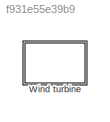
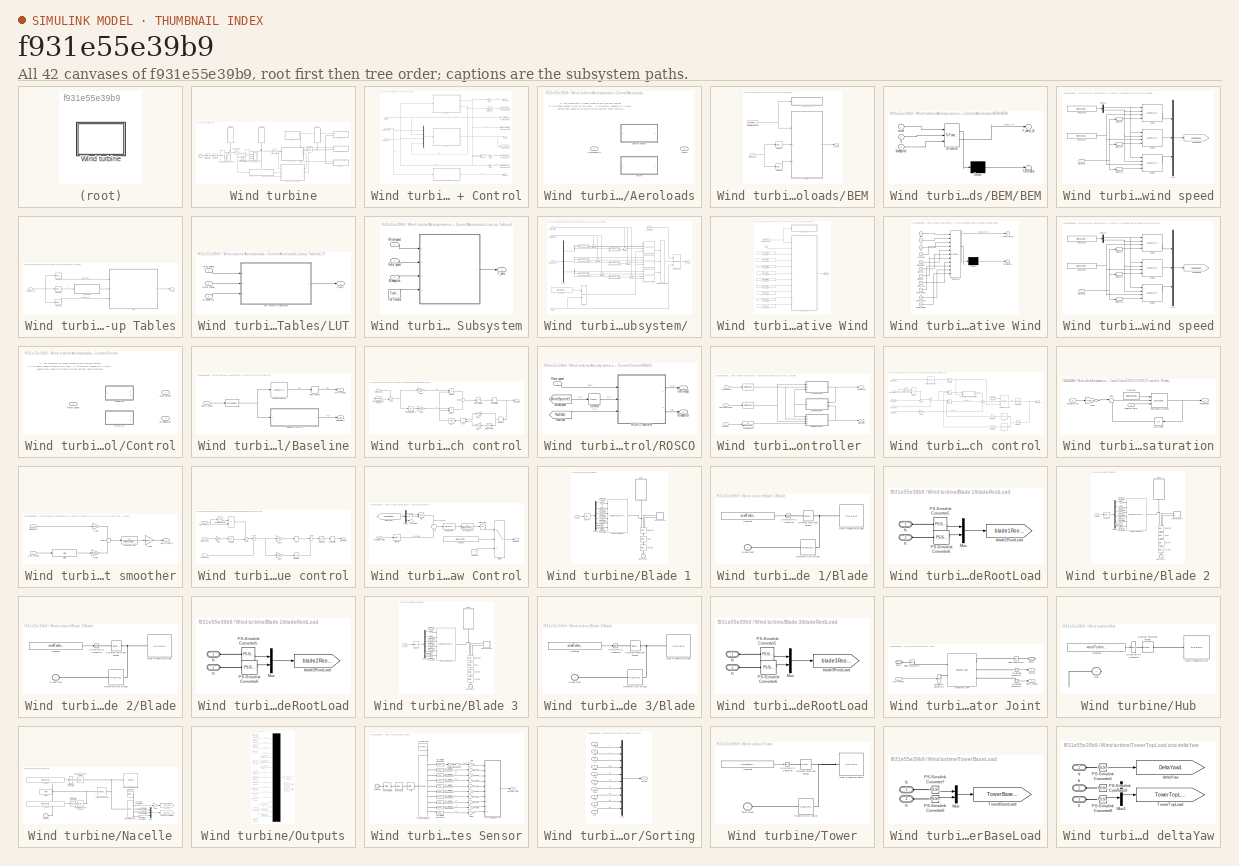
[diagram: thumbnail index - all 42 canvases of the model, root first then tree order]
MODEL slx_f931e55e39b9
KIND library
CONFIG AbsTol = auto
CONFIG EnableMultiTasking = off
CONFIG FixedStep = auto
CONFIG MaxStep = auto
CONFIG MinStep = auto
CONFIG RelTol = 1e-3
CONFIG SampleTimeConstraint = Unconstrained
CONFIG SolverName = VariableStepAuto
CONFIG StartTime = 0.0
CONFIG StopTime = 10.0
BLOCK [SubSystem] Wind turbine
  NameLocation = top
  Ports = [0, 0, 0, 0, 0, 0, 1]
  VariantControl = sv_1_IEA15MW
BLOCK [SubSystem] Wind turbine/Aerodynamics + Control
  PortSchema = {"entries":[{"content":{"sides":[{"content":{"connectorIds":["In1","In2","Out3"]},"type":"ConnectorPlacement.EquallySpacedRectSide","uuid":"f605537b-ff67-4139-9e35-b0b4424af1fd"},{"content":{"connectorIds":["Out1","In3","Out2"],"side":"RIGHT"},"type":"ConnectorPlacement.EquallySpacedRectSide","uuid":"3a18d562-2e9f-426a-bf17-957f05b26031"},{"content":{"side":"TOP"},"type":"ConnectorPlacement.Equall...<+248ch>
  Ports = [3, 3]
  VariantControl = sv_control2
BLOCK [Inport] Wind turbine/Aerodynamics + Control/ Rotor speed
BLOCK [SubSystem] Wind turbine/Aerodynamics + Control/Aeroloads
  AllowZeroVariantControls = on
  Ports = [1, 1]
  Variant = on
BLOCK [Inport] Wind turbine/Aerodynamics + Control/Aeroloads/Aeroloads_in
BLOCK [SubSystem] Wind turbine/Aerodynamics + Control/Aeroloads/BEM
  Ports = [1, 1]
  VariantControl = sv_t1_AeroLoads1
BLOCK [Inport] Wind turbine/Aerodynamics + Control/Aeroloads/BEM/Aeroloads_in
BLOCK [SubSystem] Wind turbine/Aerodynamics + Control/Aeroloads/BEM/BEM
  ErrorFcn = Stateflow.Translate.translate
  PermitHierarchicalResolution = ExplicitOnly
  Ports = [3, 1]
  SFBlockType = MATLAB Function
  TreatAsAtomicUnit = on
BLOCK [Demux] Wind turbine/Aerodynamics + Control/Aeroloads/BEM/BEM/ Demux 
  Outputs = 1
  Ports = [1, 1]
BLOCK [S-Function] Wind turbine/Aerodynamics + Control/Aeroloads/BEM/BEM/ SFunction 
  EnableBusSupport = off
  FunctionName = sf_sfun
  Parameters = BEMstruct
  PortCounts = [3 2]
  Ports = [3, 2]
  SFcnIsStateOwnerBlock = off
  SFunctionDeploymentMode = off
  Tag = Stateflow S-Function 1
BLOCK [Terminator] Wind turbine/Aerodynamics + Control/Aeroloads/BEM/BEM/ Terminator 
BLOCK [Outport] Wind turbine/Aerodynamics + Control/Aeroloads/BEM/BEM/F_aero_r_bl
BLOCK [Inport] Wind turbine/Aerodynamics + Control/Aeroloads/BEM/BEM/bladepitch
  Port = 3
BLOCK [Inport] Wind turbine/Aerodynamics + Control/Aeroloads/BEM/BEM/q
  Port = 2
BLOCK [Inport] Wind turbine/Aerodynamics + Control/Aeroloads/BEM/BEM/wind
BLOCK [Outport] Wind turbine/Aerodynamics + Control/Aeroloads/BEM/F_aero
BLOCK [FromWorkspace] Wind turbine/Aerodynamics + Control/Aeroloads/BEM/From Workspace3
  OutputAfterFinalValue = Holding final value
  VariableName = wind.Input
BLOCK [SubSystem] Wind turbine/Aerodynamics + Control/Aeroloads/BEM/Hub wind speed
  Ports = [1]
BLOCK [Constant] Wind turbine/Aerodynamics + Control/Aeroloads/BEM/Hub wind speed/Constant1
  Value = windTurbine.hub.height
BLOCK [Constant] Wind turbine/Aerodynamics + Control/Aeroloads/BEM/Hub wind speed/Constant2
  Value = windTurbine.offset_plane
BLOCK [Demux] Wind turbine/Aerodynamics + Control/Aeroloads/BEM/Hub wind speed/Demux
  Outputs = 2
  Ports = [1, 2]
BLOCK [Mux] Wind turbine/Aerodynamics + Control/Aeroloads/BEM/Hub wind speed/Mux
  DisplayOption = bar
  Inputs = 3
  Ports = [3, 1]
BLOCK [Selector] Wind turbine/Aerodynamics + Control/Aeroloads/BEM/Hub wind speed/Selector
  IndexOptions = Select all,Select all,Select all,Index vector (dialog)
  Indices = [1 3],1,1,1
  InputPortWidth = 3
  NumberOfDimensions = 4
  OutputSizes = 1,1,1,1
  Ports = [1, 1]
BLOCK [Selector] Wind turbine/Aerodynamics + Control/Aeroloads/BEM/Hub wind speed/Selector1
  IndexOptions = Select all,Select all,Select all,Index vector (dialog)
  Indices = [1 3],1,1,2
  InputPortWidth = 3
  NumberOfDimensions = 4
  OutputSizes = 1,1,1,1
  Ports = [1, 1]
BLOCK [Selector] Wind turbine/Aerodynamics + Control/Aeroloads/BEM/Hub wind speed/Selector2
  IndexOptions = Select all,Select all,Select all,Index vector (dialog)
  Indices = [1 3],1,1,3
  InputPortWidth = 3
  NumberOfDimensions = 4
  OutputSizes = 1,1,1,1
  Ports = [1, 1]
BLOCK [Lookup_n-D] Wind turbine/Aerodynamics + Control/Aeroloads/BEM/Hub wind speed/Wind
  BeginIndexSearchUsingPreviousIndexResult = on
  BreakpointsForDimension1 = wind.Xdiscr
  BreakpointsForDimension2 = wind.Ydiscr
  BreakpointsForDimension3 = wind.Zdiscr
  InputPortMap = u0,u1,u2,p221
  InternalRulePriority = Speed
  NumberOfTableDimensions = 3
  Ports = [4, 1]
  RndMeth = Simplest
  Table = permute(squeeze(wind.Input.signals.values(find(abs(wind.Xdiscr-0)==min(abs(wind.Xdiscr-0)),1),:,:,1,:)),[3 1 2])
  TableSource = Input port
BLOCK [Lookup_n-D] Wind turbine/Aerodynamics + Control/Aeroloads/BEM/Hub wind speed/Wind1
  BeginIndexSearchUsingPreviousIndexResult = on
  BreakpointsForDimension1 = wind.Xdiscr
  BreakpointsForDimension2 = wind.Ydiscr
  BreakpointsForDimension3 = wind.Zdiscr
  InputPortMap = u0,u1,u2,p221
  InternalRulePriority = Speed
  NumberOfTableDimensions = 3
  Ports = [4, 1]
  RndMeth = Simplest
  Table = permute(squeeze(wind.Input.signals.values(find(abs(wind.Xdiscr-0)==min(abs(wind.Xdiscr-0)),1),:,:,1,:)),[3 1 2])
  TableSource = Input port
BLOCK [Lookup_n-D] Wind turbine/Aerodynamics + Control/Aeroloads/BEM/Hub wind speed/Wind2
  BeginIndexSearchUsingPreviousIndexResult = on
  BreakpointsForDimension1 = wind.Xdiscr
  BreakpointsForDimension2 = wind.Ydiscr
  BreakpointsForDimension3 = wind.Zdiscr
  InputPortMap = u0,u1,u2,p221
  InternalRulePriority = Speed
  NumberOfTableDimensions = 3
  Ports = [4, 1]
  RndMeth = Simplest
  Table = permute(squeeze(wind.Input.signals.values(find(abs(wind.Xdiscr-0)==min(abs(wind.Xdiscr-0)),1),:,:,1,:)),[3 1 2])
  TableSource = Input port
BLOCK [Goto] Wind turbine/Aerodynamics + Control/Aeroloads/BEM/Hub wind speed/WindSpeed
  GotoTag = WindSpeed1
  TagVisibility = global
BLOCK [Inport] Wind turbine/Aerodynamics + Control/Aeroloads/BEM/Hub wind speed/wind_input
BLOCK [Selector] Wind turbine/Aerodynamics + Control/Aeroloads/BEM/Selector
  IndexOptions = Index vector (dialog)
  Indices = [1:14]
  InputPortWidth = 15
  OutputSizes = 1
  Ports = [1, 1]
BLOCK [Selector] Wind turbine/Aerodynamics + Control/Aeroloads/BEM/Selector1
  IndexOptions = Index vector (dialog)
  Indices = [15]
  InputPortWidth = 15
  OutputSizes = 1
  Ports = [1, 1]
BLOCK [Outport] Wind turbine/Aerodynamics + Control/Aeroloads/F_aero
BLOCK [SubSystem] Wind turbine/Aerodynamics + Control/Aeroloads/Look-up Tables
  Ports = [1, 1]
  VariantControl = sv_t1_AeroLoads0
BLOCK [Inport] Wind turbine/Aerodynamics + Control/Aeroloads/Look-up Tables/Aeroloads_in
BLOCK [Outport] Wind turbine/Aerodynamics + Control/Aeroloads/Look-up Tables/F_aero
  PortDimensions = [6 3]
BLOCK [SubSystem] Wind turbine/Aerodynamics + Control/Aeroloads/Look-up Tables/LUT
  NameLocation = top
  Ports = [3, 1]
BLOCK [Inport] Wind turbine/Aerodynamics + Control/Aeroloads/Look-up Tables/LUT/Bladepitch
BLOCK [Outport] Wind turbine/Aerodynamics + Control/Aeroloads/Look-up Tables/LUT/F_aero
  PortDimensions = [6 3]
BLOCK [SubSystem] Wind turbine/Aerodynamics + Control/Aeroloads/Look-up Tables/LUT/For Iterator Subsystem
  Ports = [3, 1]
  TreatAsAtomicUnit = on
BLOCK [SubSystem] Wind turbine/Aerodynamics + Control/Aeroloads/Look-up Tables/LUT/For Iterator Subsystem/ 
  Ports = [4, 1]
BLOCK [Lookup_n-D] Wind turbine/Aerodynamics + Control/Aeroloads/Look-up Tables/LUT/For Iterator Subsystem/ /1-D Lookup Table1
  BreakpointsForDimension1 = windTurbine.aeroLoads.wind_vec
  InputPortMap = u0
  InternalRulePriority = Speed
  NumberOfTableDimensions = 1
  Ports = [1, 1]
  RndMeth = Simplest
  Table = windTurbine.aeroLoads.omega_vec
BLOCK [Lookup_n-D] Wind turbine/Aerodynamics + Control/Aeroloads/Look-up Tables/LUT/For Iterator Subsystem/ /1-D Lookup Table2
  BreakpointsForDimension1 = windTurbine.aeroLoads.wind_vec
  InputPortMap = u0
  InternalRulePriority = Speed
  NumberOfTableDimensions = 1
  Ports = [1, 1]
  RndMeth = Simplest
  Table = windTurbine.aeroLoads.omega_vec
BLOCK [Lookup_n-D] Wind turbine/Aerodynamics + Control/Aeroloads/Look-up Tables/LUT/For Iterator Subsystem/ /1-D Lookup Table3
  BreakpointsForDimension1 = windTurbine.aeroLoads.wind_vec
  InputPortMap = u0
  InternalRulePriority = Speed
  NumberOfTableDimensions = 1
  Ports = [1, 1]
  RndMeth = Simplest
  Table = windTurbine.aeroLoads.omega_vec
BLOCK [Lookup_n-D] Wind turbine/Aerodynamics + Control/Aeroloads/Look-up Tables/LUT/For Iterator Subsystem/ /1-D Lookup Table4
  BreakpointsForDimension1 = windTurbine.aeroLoads.wind_vec
  InputPortMap = u0
  InternalRulePriority = Speed
  NumberOfTableDimensions = 1
  Ports = [1, 1]
  RndMeth = Simplest
  Table = windTurbine.aeroLoads.bladepitch_vec
BLOCK [Lookup_n-D] Wind turbine/Aerodynamics + Control/Aeroloads/Look-up Tables/LUT/For Iterator Subsystem/ /1-D Lookup Table5
  BreakpointsForDimension1 = windTurbine.aeroLoads.wind_vec
  InputPortMap = u0
  InternalRulePriority = Speed
  NumberOfTableDimensions = 1
  Ports = [1, 1]
  RndMeth = Simplest
  Table = windTurbine.aeroLoads.bladepitch_vec
BLOCK [Lookup_n-D] Wind turbine/Aerodynamics + Control/Aeroloads/Look-up Tables/LUT/For Iterator Subsystem/ /1-D Lookup Table6
  BreakpointsForDimension1 = windTurbine.aeroLoads.wind_vec
  InputPortMap = u0
  InternalRulePriority = Speed
  NumberOfTableDimensions = 1
  Ports = [1, 1]
  RndMeth = Simplest
  Table = windTurbine.aeroLoads.bladepitch_vec
BLOCK [Lookup_n-D] Wind turbine/Aerodynamics + Control/Aeroloads/Look-up Tables/LUT/For Iterator Subsystem/ /3-D Lookup Table1
  BreakpointsForDimension1 = windTurbine.aeroLoads.wind_vec
  BreakpointsForDimension2 = windTurbine.aeroLoads.omegaerr
  BreakpointsForDimension3 = windTurbine.aeroLoads.bladepitcherr
  ExtrapMethod = Clip
  InputPortMap = u0,u1,u2,p221
  InternalRulePriority = Speed
  NameLocation = top
  NumberOfTableDimensions = 3
  Ports = [4, 1]
  RndMeth = Simplest
  Table = squeeze(windturbine.aeroloads.F_aero(:,:,:,1))
  TableSource = Input port
  UseLastTableValue = on
BLOCK [Lookup_n-D] Wind turbine/Aerodynamics + Control/Aeroloads/Look-up Tables/LUT/For Iterator Subsystem/ /3-D Lookup Table2
  BreakpointsForDimension1 = windTurbine.aeroLoads.wind_vec
  BreakpointsForDimension2 = windTurbine.aeroLoads.omegaerr
  BreakpointsForDimension3 = windTurbine.aeroLoads.bladepitcherr
  ExtrapMethod = Clip
  InputPortMap = u0,u1,u2,p221
  InternalRulePriority = Speed
  NameLocation = top
  NumberOfTableDimensions = 3
  Ports = [4, 1]
  RndMeth = Simplest
  Table = squeeze(windturbine.aeroloads.F_aero(:,:,:,1))
  TableSource = Input port
  UseLastTableValue = on
BLOCK [Lookup_n-D] Wind turbine/Aerodynamics + Control/Aeroloads/Look-up Tables/LUT/For Iterator Subsystem/ /3-D Lookup Table3
  BreakpointsForDimension1 = windTurbine.aeroLoads.wind_vec
  BreakpointsForDimension2 = windTurbine.aeroLoads.omegaerr
  BreakpointsForDimension3 = windTurbine.aeroLoads.bladepitcherr
  ExtrapMethod = Clip
  InputPortMap = u0,u1,u2,p221
  InternalRulePriority = Speed
  NameLocation = top
  NumberOfTableDimensions = 3
  Ports = [4, 1]
  RndMeth = Simplest
  Table = squeeze(windturbine.aeroloads.F_aero(:,:,:,1))
  TableSource = Input port
  UseLastTableValue = on
BLOCK [Assignment] Wind turbine/Aerodynamics + Control/Aeroloads/Look-up Tables/LUT/For Iterator Subsystem/ /Assignment
  DiagnosticForDimensions = Warning
  IndexOptions = Index vector (port),Assign all
  Indices = 1,1
  NumberOfDimensions = 2
  OutputSizes = 1,1
  Ports = [3, 1]
BLOCK [Inport] Wind turbine/Aerodynamics + Control/Aeroloads/Look-up Tables/LUT/For Iterator Subsystem/ /Bladepitch
  Port = 3
BLOCK [Constant] Wind turbine/Aerodynamics + Control/Aeroloads/Look-up Tables/LUT/For Iterator Subsystem/ /Constant
  Value = windTurbine.aeroLoads.F_aero
BLOCK [Constant] Wind turbine/Aerodynamics + Control/Aeroloads/Look-up Tables/LUT/For Iterator Subsystem/ /Constant1
  Value = zeros(6,3)
BLOCK [Demux] Wind turbine/Aerodynamics + Control/Aeroloads/Look-up Tables/LUT/For Iterator Subsystem/ /Demux
  Outputs = 3
  Ports = [1, 3]
BLOCK [Outport] Wind turbine/Aerodynamics + Control/Aeroloads/Look-up Tables/LUT/For Iterator Subsystem/ /F_aero
  PortDimensions = [6 3]
BLOCK [Inport] Wind turbine/Aerodynamics + Control/Aeroloads/Look-up Tables/LUT/For Iterator Subsystem/ /Index
  Port = 4
BLOCK [Concatenate] Wind turbine/Aerodynamics + Control/Aeroloads/Look-up Tables/LUT/For Iterator Subsystem/ /Matrix Concatenate
  ConcatenateDimension = 2
  Mode = Multidimensional array
  NumInputs = 3
  Ports = [3, 1]
BLOCK [Inport] Wind turbine/Aerodynamics + Control/Aeroloads/Look-up Tables/LUT/For Iterator Subsystem/ /Rotor speed
  Port = 2
BLOCK [Selector] Wind turbine/Aerodynamics + Control/Aeroloads/Look-up Tables/LUT/For Iterator Subsystem/ /Selector
  IndexOptions = Select all,Select all,Select all,Index vector (port)
  Indices = [1 3],1,1,1
  InputPortWidth = 3
  NumberOfDimensions = 4
  OutputSizes = 1,1,1,1
  Ports = [2, 1]
BLOCK [Sum] Wind turbine/Aerodynamics + Control/Aeroloads/Look-up Tables/LUT/For Iterator Subsystem/ /Sum1
  Inputs = +-|
  NameLocation = top
  Ports = [2, 1]
BLOCK [Sum] Wind turbine/Aerodynamics + Control/Aeroloads/Look-up Tables/LUT/For Iterator Subsystem/ /Sum2
  Inputs = +-|
  NameLocation = top
  Ports = [2, 1]
BLOCK [Sum] Wind turbine/Aerodynamics + Control/Aeroloads/Look-up Tables/LUT/For Iterator Subsystem/ /Sum3
  Inputs = +-|
  NameLocation = top
  Ports = [2, 1]
BLOCK [Sum] Wind turbine/Aerodynamics + Control/Aeroloads/Look-up Tables/LUT/For Iterator Subsystem/ /Sum4
  Inputs = +-|
  NameLocation = top
  Ports = [2, 1]
BLOCK [Sum] Wind turbine/Aerodynamics + Control/Aeroloads/Look-up Tables/LUT/For Iterator Subsystem/ /Sum5
  Inputs = +-|
  NameLocation = top
  Ports = [2, 1]
BLOCK [Sum] Wind turbine/Aerodynamics + Control/Aeroloads/Look-up Tables/LUT/For Iterator Subsystem/ /Sum6
  Inputs = +-|
  NameLocation = top
  Ports = [2, 1]
BLOCK [Inport] Wind turbine/Aerodynamics + Control/Aeroloads/Look-up Tables/LUT/For Iterator Subsystem/ /Wind speed
BLOCK [Inport] Wind turbine/Aerodynamics + Control/Aeroloads/Look-up Tables/LUT/For Iterator Subsystem/Bladepitch
  Port = 3
BLOCK [Outport] Wind turbine/Aerodynamics + Control/Aeroloads/Look-up Tables/LUT/For Iterator Subsystem/F_aero
BLOCK [ForIterator] Wind turbine/Aerodynamics + Control/Aeroloads/Look-up Tables/LUT/For Iterator Subsystem/For Iterator
  IterationLimit = 6
  Ports = [0, 1]
BLOCK [Inport] Wind turbine/Aerodynamics + Control/Aeroloads/Look-up Tables/LUT/For Iterator Subsystem/Rotor speed
  Port = 2
BLOCK [Inport] Wind turbine/Aerodynamics + Control/Aeroloads/Look-up Tables/LUT/For Iterator Subsystem/Wind speed
BLOCK [Inport] Wind turbine/Aerodynamics + Control/Aeroloads/Look-up Tables/LUT/Rotor speed
  Port = 3
BLOCK [Inport] Wind turbine/Aerodynamics + Control/Aeroloads/Look-up Tables/LUT/Wind speed
  Port = 2
BLOCK [SubSystem] Wind turbine/Aerodynamics + Control/Aeroloads/Look-up Tables/Relative Wind
  Ports = [1, 1]
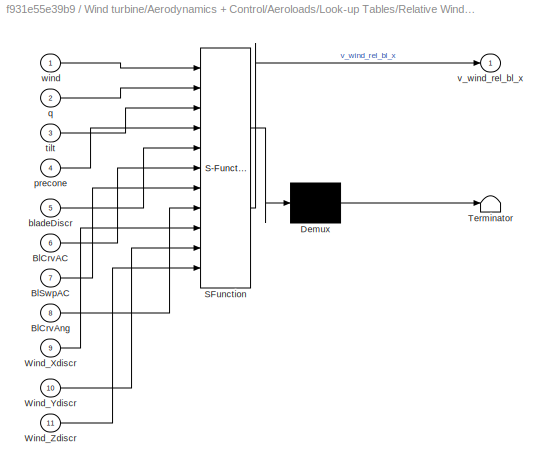
BLOCK [SubSystem] Wind turbine/Aerodynamics + Control/Aeroloads/Look-up Tables/Relative Wind/Calc Relative Wind
  ErrorFcn = Stateflow.Translate.translate
  PermitHierarchicalResolution = ExplicitOnly
  Ports = [11, 1]
  SFBlockType = MATLAB Function
  TreatAsAtomicUnit = on
BLOCK [Demux] Wind turbine/Aerodynamics + Control/Aeroloads/Look-up Tables/Relative Wind/Calc Relative Wind/ Demux 
  Outputs = 1
  Ports = [1, 1]
BLOCK [S-Function] Wind turbine/Aerodynamics + Control/Aeroloads/Look-up Tables/Relative Wind/Calc Relative Wind/ SFunction 
  EnableBusSupport = off
  FunctionName = sf_sfun
  PortCounts = [11 2]
  Ports = [11, 2]
  SFcnIsStateOwnerBlock = off
  SFunctionDeploymentMode = off
  Tag = Stateflow S-Function 3
BLOCK [Terminator] Wind turbine/Aerodynamics + Control/Aeroloads/Look-up Tables/Relative Wind/Calc Relative Wind/ Terminator 
BLOCK [Inport] Wind turbine/Aerodynamics + Control/Aeroloads/Look-up Tables/Relative Wind/Calc Relative Wind/BlCrvAC
  Port = 6
BLOCK [Inport] Wind turbine/Aerodynamics + Control/Aeroloads/Look-up Tables/Relative Wind/Calc Relative Wind/BlCrvAng
  Port = 8
BLOCK [Inport] Wind turbine/Aerodynamics + Control/Aeroloads/Look-up Tables/Relative Wind/Calc Relative Wind/BlSwpAC
  Port = 7
BLOCK [Inport] Wind turbine/Aerodynamics + Control/Aeroloads/Look-up Tables/Relative Wind/Calc Relative Wind/Wind_Xdiscr
  Port = 9
BLOCK [Inport] Wind turbine/Aerodynamics + Control/Aeroloads/Look-up Tables/Relative Wind/Calc Relative Wind/Wind_Ydiscr
  Port = 10
BLOCK [Inport] Wind turbine/Aerodynamics + Control/Aeroloads/Look-up Tables/Relative Wind/Calc Relative Wind/Wind_Zdiscr
  Port = 11
BLOCK [Inport] Wind turbine/Aerodynamics + Control/Aeroloads/Look-up Tables/Relative Wind/Calc Relative Wind/bladeDiscr
  Port = 5
BLOCK [Inport] Wind turbine/Aerodynamics + Control/Aeroloads/Look-up Tables/Relative Wind/Calc Relative Wind/precone
  Port = 4
BLOCK [Inport] Wind turbine/Aerodynamics + Control/Aeroloads/Look-up Tables/Relative Wind/Calc Relative Wind/q
  Port = 2
BLOCK [Inport] Wind turbine/Aerodynamics + Control/Aeroloads/Look-up Tables/Relative Wind/Calc Relative Wind/tilt
  Port = 3
BLOCK [Outport] Wind turbine/Aerodynamics + Control/Aeroloads/Look-up Tables/Relative Wind/Calc Relative Wind/v_wind_rel_bl_x
BLOCK [Inport] Wind turbine/Aerodynamics + Control/Aeroloads/Look-up Tables/Relative Wind/Calc Relative Wind/wind
BLOCK [Constant] Wind turbine/Aerodynamics + Control/Aeroloads/Look-up Tables/Relative Wind/Constant
  Value = windTurbine.nacelle.tiltangle*pi/180
BLOCK [Constant] Wind turbine/Aerodynamics + Control/Aeroloads/Look-up Tables/Relative Wind/Constant1
  Value = windTurbine.hub.precone*pi/180
BLOCK [Constant] Wind turbine/Aerodynamics + Control/Aeroloads/Look-up Tables/Relative Wind/Constant3
  Value = windTurbine.blade.bladeDiscr
BLOCK [Constant] Wind turbine/Aerodynamics + Control/Aeroloads/Look-up Tables/Relative Wind/Constant4
  Value = wind.Xdiscr
BLOCK [Constant] Wind turbine/Aerodynamics + Control/Aeroloads/Look-up Tables/Relative Wind/Constant5
  Value = windTurbine.blade.BlCrvAC
BLOCK [Constant] Wind turbine/Aerodynamics + Control/Aeroloads/Look-up Tables/Relative Wind/Constant6
  Value = windTurbine.blade.BlSwpAC
BLOCK [Constant] Wind turbine/Aerodynamics + Control/Aeroloads/Look-up Tables/Relative Wind/Constant7
  Value = windTurbine.blade.BlCrvAng
BLOCK [Constant] Wind turbine/Aerodynamics + Control/Aeroloads/Look-up Tables/Relative Wind/Constant8
  Value = wind.Ydiscr
BLOCK [Constant] Wind turbine/Aerodynamics + Control/Aeroloads/Look-up Tables/Relative Wind/Constant9
  Value = wind.Zdiscr
BLOCK [FromWorkspace] Wind turbine/Aerodynamics + Control/Aeroloads/Look-up Tables/Relative Wind/From Workspace3
  OutputAfterFinalValue = Holding final value
  VariableName = wind.Input
BLOCK [SubSystem] Wind turbine/Aerodynamics + Control/Aeroloads/Look-up Tables/Relative Wind/Hub wind speed
  Ports = [1]
BLOCK [Constant] Wind turbine/Aerodynamics + Control/Aeroloads/Look-up Tables/Relative Wind/Hub wind speed/Constant1
  Value = windTurbine.hub.height
BLOCK [Constant] Wind turbine/Aerodynamics + Control/Aeroloads/Look-up Tables/Relative Wind/Hub wind speed/Constant2
  Value = windTurbine.offset_plane
BLOCK [Demux] Wind turbine/Aerodynamics + Control/Aeroloads/Look-up Tables/Relative Wind/Hub wind speed/Demux
  Outputs = 2
  Ports = [1, 2]
BLOCK [Mux] Wind turbine/Aerodynamics + Control/Aeroloads/Look-up Tables/Relative Wind/Hub wind speed/Mux
  DisplayOption = bar
  Inputs = 3
  Ports = [3, 1]
BLOCK [Selector] Wind turbine/Aerodynamics + Control/Aeroloads/Look-up Tables/Relative Wind/Hub wind speed/Selector
  IndexOptions = Select all,Select all,Select all,Index vector (dialog)
  Indices = [1 3],1,1,1
  InputPortWidth = 3
  NumberOfDimensions = 4
  OutputSizes = 1,1,1,1
  Ports = [1, 1]
BLOCK [Selector] Wind turbine/Aerodynamics + Control/Aeroloads/Look-up Tables/Relative Wind/Hub wind speed/Selector1
  IndexOptions = Select all,Select all,Select all,Index vector (dialog)
  Indices = [1 3],1,1,2
  InputPortWidth = 3
  NumberOfDimensions = 4
  OutputSizes = 1,1,1,1
  Ports = [1, 1]
BLOCK [Selector] Wind turbine/Aerodynamics + Control/Aeroloads/Look-up Tables/Relative Wind/Hub wind speed/Selector2
  IndexOptions = Select all,Select all,Select all,Index vector (dialog)
  Indices = [1 3],1,1,3
  InputPortWidth = 3
  NumberOfDimensions = 4
  OutputSizes = 1,1,1,1
  Ports = [1, 1]
BLOCK [Lookup_n-D] Wind turbine/Aerodynamics + Control/Aeroloads/Look-up Tables/Relative Wind/Hub wind speed/Wind
  BeginIndexSearchUsingPreviousIndexResult = on
  BreakpointsForDimension1 = wind.Xdiscr
  BreakpointsForDimension2 = wind.Ydiscr
  BreakpointsForDimension3 = wind.Zdiscr
  InputPortMap = u0,u1,u2,p221
  InternalRulePriority = Speed
  NumberOfTableDimensions = 3
  Ports = [4, 1]
  RndMeth = Simplest
  Table = permute(squeeze(wind.Input.signals.values(find(abs(wind.Xdiscr-0)==min(abs(wind.Xdiscr-0)),1),:,:,1,:)),[3 1 2])
  TableSource = Input port
BLOCK [Lookup_n-D] Wind turbine/Aerodynamics + Control/Aeroloads/Look-up Tables/Relative Wind/Hub wind speed/Wind1
  BeginIndexSearchUsingPreviousIndexResult = on
  BreakpointsForDimension1 = wind.Xdiscr
  BreakpointsForDimension2 = wind.Ydiscr
  BreakpointsForDimension3 = wind.Zdiscr
  InputPortMap = u0,u1,u2,p221
  InternalRulePriority = Speed
  NumberOfTableDimensions = 3
  Ports = [4, 1]
  RndMeth = Simplest
  Table = permute(squeeze(wind.Input.signals.values(find(abs(wind.Xdiscr-0)==min(abs(wind.Xdiscr-0)),1),:,:,1,:)),[3 1 2])
  TableSource = Input port
BLOCK [Lookup_n-D] Wind turbine/Aerodynamics + Control/Aeroloads/Look-up Tables/Relative Wind/Hub wind speed/Wind2
  BeginIndexSearchUsingPreviousIndexResult = on
  BreakpointsForDimension1 = wind.Xdiscr
  BreakpointsForDimension2 = wind.Ydiscr
  BreakpointsForDimension3 = wind.Zdiscr
  InputPortMap = u0,u1,u2,p221
  InternalRulePriority = Speed
  NumberOfTableDimensions = 3
  Ports = [4, 1]
  RndMeth = Simplest
  Table = permute(squeeze(wind.Input.signals.values(find(abs(wind.Xdiscr-0)==min(abs(wind.Xdiscr-0)),1),:,:,1,:)),[3 1 2])
  TableSource = Input port
BLOCK [Goto] Wind turbine/Aerodynamics + Control/Aeroloads/Look-up Tables/Relative Wind/Hub wind speed/WindSpeed
  GotoTag = WindSpeed1
  TagVisibility = global
BLOCK [Inport] Wind turbine/Aerodynamics + Control/Aeroloads/Look-up Tables/Relative Wind/Hub wind speed/wind_input
BLOCK [Outport] Wind turbine/Aerodynamics + Control/Aeroloads/Look-up Tables/Relative Wind/Relative Wind
BLOCK [Inport] Wind turbine/Aerodynamics + Control/Aeroloads/Look-up Tables/Relative Wind/q
BLOCK [Selector] Wind turbine/Aerodynamics + Control/Aeroloads/Look-up Tables/Selector
  IndexOptions = Index vector (dialog)
  Indices = [15]
  InputPortWidth = 15
  OutputSizes = 1
  Ports = [1, 1]
BLOCK [Selector] Wind turbine/Aerodynamics + Control/Aeroloads/Look-up Tables/Selector1
  IndexOptions = Index vector (dialog)
  Indices = [1:14]
  InputPortWidth = 15
  OutputSizes = 1
  Ports = [1, 1]
BLOCK [Selector] Wind turbine/Aerodynamics + Control/Aeroloads/Look-up Tables/Selector2
  IndexOptions = Index vector (dialog)
  Indices = [14]
  InputPortWidth = 15
  OutputSizes = 1
  Ports = [1, 1]
BLOCK [Inport] Wind turbine/Aerodynamics + Control/Azimuth
  Port = 2
BLOCK [SubSystem] Wind turbine/Aerodynamics + Control/Control
  AllowZeroVariantControls = on
  Ports = [1, 2]
  Variant = on
  VariantControl = sv_IEA10MW
BLOCK [SubSystem] Wind turbine/Aerodynamics + Control/Control/Baseline
  Ports = [1, 2]
  VariantControl = sv_t1_control0
BLOCK [StateSpace] Wind turbine/Aerodynamics + Control/Control/Baseline/ 
  A = windTurbine.Baseline.omegaFilter.A
  B = windTurbine.Baseline.omegaFilter.B
  C = windTurbine.Baseline.omegaFilter.C
  D = windTurbine.Baseline.omegaFilter.D
  InitialCondition = [0,windTurbine.omega0/windTurbine.Baseline.omegaFilter.C(2)]
  Ports = [1, 1]
BLOCK [Outport] Wind turbine/Aerodynamics + Control/Control/Baseline/Bladepitch
  Port = 2
BLOCK [SubSystem] Wind turbine/Aerodynamics + Control/Control/Baseline/Bladepitch control
  Ports = [1, 1]
BLOCK [Sum] Wind turbine/Aerodynamics + Control/Control/Baseline/Bladepitch control/Add
  IconShape = rectangular
  NameLocation = top
  Ports = [2, 1]
BLOCK [Bias] Wind turbine/Aerodynamics + Control/Control/Baseline/Bladepitch control/Bias
  Bias = windTurbine.Baseline.c3
  NameLocation = top
  SaturateOnIntegerOverflow = off
BLOCK [Outport] Wind turbine/Aerodynamics + Control/Control/Baseline/Bladepitch control/Bladepitch
  VectorParamsAs1DForOutWhenUnconnected = off
BLOCK [Product] Wind turbine/Aerodynamics + Control/Control/Baseline/Bladepitch control/Divide2
  Inputs = */
  Ports = [2, 1]
BLOCK [Product] Wind turbine/Aerodynamics + Control/Control/Baseline/Bladepitch control/Divide3
  Inputs = */
  Ports = [2, 1]
BLOCK [Gain] Wind turbine/Aerodynamics + Control/Control/Baseline/Bladepitch control/Gain1
  Gain = windTurbine.Baseline.c1
  NameLocation = top
BLOCK [Gain] Wind turbine/Aerodynamics + Control/Control/Baseline/Bladepitch control/Gain2
  Gain = windTurbine.Baseline.c2
  NameLocation = top
BLOCK [Gain] Wind turbine/Aerodynamics + Control/Control/Baseline/Bladepitch control/Gain4
  Gain = windTurbine.Baseline.KP
BLOCK [Gain] Wind turbine/Aerodynamics + Control/Control/Baseline/Bladepitch control/Gain6
  Gain = windTurbine.Baseline.KI
BLOCK [Constant] Wind turbine/Aerodynamics + Control/Control/Baseline/Bladepitch control/Generator nominal speed
  Value = windTurbine.Baseline.omegaMax
BLOCK [Integrator] Wind turbine/Aerodynamics + Control/Control/Baseline/Bladepitch control/Integrator Limited1
  LimitOutput = on
  LowerSaturationLimit = 0
  Ports = [1, 1]
BLOCK [Math] Wind turbine/Aerodynamics + Control/Control/Baseline/Bladepitch control/Math Function
  NameLocation = top
  Operator = square
  Ports = [1, 1]
BLOCK [Memory] Wind turbine/Aerodynamics + Control/Control/Baseline/Bladepitch control/Memory2
  InitialCondition = windTurbine.bladepitch0
BLOCK [RateLimiter] Wind turbine/Aerodynamics + Control/Control/Baseline/Bladepitch control/Pitch rate limiter
  FallingSlewLimit = -windTurbine.Baseline.thetaMaxRate
  InitialCondition = windTurbine.bladepitch0
  RisingSlewLimit = windTurbine.Baseline.thetaMaxRate
  SampleTimeMode = inherited
BLOCK [Saturate] Wind turbine/Aerodynamics + Control/Control/Baseline/Bladepitch control/Pitch saturation
  LowerLimit = 0
  UpperLimit = pi/2
BLOCK [Inport] Wind turbine/Aerodynamics + Control/Control/Baseline/Bladepitch control/Rotor speed
  NameLocation = top
BLOCK [Sum] Wind turbine/Aerodynamics + Control/Control/Baseline/Bladepitch control/Sum3
  Inputs = +-|
  Ports = [2, 1]
BLOCK [Sum] Wind turbine/Aerodynamics + Control/Control/Baseline/Bladepitch control/Sum4
  Ports = [2, 1]
BLOCK [Outport] Wind turbine/Aerodynamics + Control/Control/Baseline/Gen torque
BLOCK [RateLimiter] Wind turbine/Aerodynamics + Control/Control/Baseline/Rate Limiter 
  FallingSlewLimit = -windTurbine.Baseline.torqueMaxRate
  RisingSlewLimit = windTurbine.Baseline.torqueMaxRate
  SampleTimeMode = inherited
BLOCK [Inport] Wind turbine/Aerodynamics + Control/Control/Baseline/Rotor speed
BLOCK [Lookup_n-D] Wind turbine/Aerodynamics + Control/Control/Baseline/Torque control
  BreakpointsForDimension1 = windTurbine.Baseline.omega_gen
  InputPortMap = u0
  NumberOfTableDimensions = 1
  Ports = [1, 1]
  RndMeth = Simplest
  Table = windTurbine.Baseline.Cgen
BLOCK [Outport] Wind turbine/Aerodynamics + Control/Control/Bladepitch
  Port = 2
BLOCK [Outport] Wind turbine/Aerodynamics + Control/Control/Gen torque
BLOCK [SubSystem] Wind turbine/Aerodynamics + Control/Control/ROSCO
  Ports = [1, 2]
  VariantControl = sv_t1_control1
BLOCK [Outport] Wind turbine/Aerodynamics + Control/Control/ROSCO/Bladepitch
  Port = 2
BLOCK [Outport] Wind turbine/Aerodynamics + Control/Control/ROSCO/Gen torque
BLOCK [From] Wind turbine/Aerodynamics + Control/Control/ROSCO/NacXdot
  GotoTag = NacXdot1
  NameLocation = top
  TagVisibility = global
BLOCK [SubSystem] Wind turbine/Aerodynamics + Control/Control/ROSCO/ROSCO controller 
  Ports = [3, 2]
BLOCK [StateSpace] Wind turbine/Aerodynamics + Control/Control/ROSCO/ROSCO controller / 
  A = windTurbine.ROSCO.omegaFilter.A
  B = windTurbine.ROSCO.omegaFilter.B
  C = windTurbine.ROSCO.omegaFilter.C
  D = windTurbine.ROSCO.omegaFilter.D
  InitialCondition = [0,(0*pi/30)/windTurbine.ROSCO.omegaFilter.C(2)]
  Ports = [1, 1]
BLOCK [StateSpace] Wind turbine/Aerodynamics + Control/Control/ROSCO/ROSCO controller /  
  A = windTurbine.ROSCO.windFilter.A
  B = windTurbine.ROSCO.windFilter.B
  C = windTurbine.ROSCO.windFilter.C
  D = windTurbine.ROSCO.windFilter.D
  InitialCondition = [0,0/windTurbine.ROSCO.windFilter.C(2)]
  Ports = [1, 1]
BLOCK [Outport] Wind turbine/Aerodynamics + Control/Control/ROSCO/ROSCO controller /Bladepitch
  Port = 2
BLOCK [SubSystem] Wind turbine/Aerodynamics + Control/Control/ROSCO/ROSCO controller /Bladepitch control
  Ports = [4, 1]
BLOCK [Outport] Wind turbine/Aerodynamics + Control/Control/ROSCO/ROSCO controller /Bladepitch control/Bladepitch
BLOCK [Reference] Wind turbine/Aerodynamics + Control/Control/ROSCO/ROSCO controller /Bladepitch control/Compare To Zero1  REF=simulink/Logic and Bit
Operations/Compare
To Zero
  Ports = [1, 1]
  SourceBlock = simulink/Logic and Bit\nOperations/Compare\nTo Zero
  SourceType = Compare To Zero
BLOCK [Constant] Wind turbine/Aerodynamics + Control/Control/ROSCO/ROSCO controller /Bladepitch control/Constant
  Value = windTurbine.ROSCO.omegaMax
BLOCK [Constant] Wind turbine/Aerodynamics + Control/Control/ROSCO/ROSCO controller /Bladepitch control/Constant1
  Value = deg2rad(90)
BLOCK [Inport] Wind turbine/Aerodynamics + Control/Control/ROSCO/ROSCO controller /Bladepitch control/Del_Omega_g
BLOCK [Gain] Wind turbine/Aerodynamics + Control/Control/ROSCO/ROSCO controller /Bladepitch control/Gain
  Gain = windTurbine.ROSCO.KV
BLOCK [Inport] Wind turbine/Aerodynamics + Control/Control/ROSCO/ROSCO controller /Bladepitch control/Gen speed
  Port = 3
BLOCK [SubSystem] Wind turbine/Aerodynamics + Control/Control/ROSCO/ROSCO controller /Bladepitch control/Integrator with dynamic saturation
  NameLocation = top
  Ports = [2, 1]
BLOCK [Constant] Wind turbine/Aerodynamics + Control/Control/ROSCO/ROSCO controller /Bladepitch control/Integrator with dynamic saturation/Constant
  Value = deg2rad(90)
BLOCK [Gain] Wind turbine/Aerodynamics + Control/Control/ROSCO/ROSCO controller /Bladepitch control/Integrator with dynamic saturation/Gain
  Gain = simu.dt
BLOCK [Reference] Wind turbine/Aerodynamics + Control/Control/ROSCO/ROSCO controller /Bladepitch control/Integrator with dynamic saturation/Saturation Dynamic  REF=simulink/Discontinuities/Saturation
Dynamic
  Ports = [3, 1]
  SourceBlock = simulink/Discontinuities/Saturation\nDynamic
  SourceType = Saturation Dynamic
BLOCK [Sum] Wind turbine/Aerodynamics + Control/Control/ROSCO/ROSCO controller /Bladepitch control/Integrator with dynamic saturation/Sum
  Inputs = |++
  Ports = [2, 1]
BLOCK [UnitDelay] Wind turbine/Aerodynamics + Control/Control/ROSCO/ROSCO controller /Bladepitch control/Integrator with dynamic saturation/Unit Delay
  HasFrameUpgradeWarning = on
  NameLocation = top
  SampleTime = -1
BLOCK [Outport] Wind turbine/Aerodynamics + Control/Control/ROSCO/ROSCO controller /Bladepitch control/Integrator with dynamic saturation/integration
BLOCK [Inport] Wind turbine/Aerodynamics + Control/Control/ROSCO/ROSCO controller /Bladepitch control/Integrator with dynamic saturation/minimum pitch
  Port = 2
BLOCK [Inport] Wind turbine/Aerodynamics + Control/Control/ROSCO/ROSCO controller /Bladepitch control/Integrator with dynamic saturation/omega error
BLOCK [Lookup_n-D] Wind turbine/Aerodynamics + Control/Control/ROSCO/ROSCO controller /Bladepitch control/KI
  BreakpointsForDimension1 = windTurbine.ROSCO.theta
  InputPortMap = u0
  InternalRulePriority = Speed
  NumberOfTableDimensions = 1
  Ports = [1, 1]
  RndMeth = Simplest
  Table = windTurbine.ROSCO.KI_theta
BLOCK [Lookup_n-D] Wind turbine/Aerodynamics + Control/Control/ROSCO/ROSCO controller /Bladepitch control/KP
  BreakpointsForDimension1 = windTurbine.ROSCO.theta
  InputPortMap = u0
  InternalRulePriority = Speed
  NumberOfTableDimensions = 1
  Ports = [1, 1]
  RndMeth = Simplest
  Table = windTurbine.ROSCO.KP_theta
BLOCK [Lookup_n-D] Wind turbine/Aerodynamics + Control/Control/ROSCO/ROSCO controller /Bladepitch control/Minimum blade pitch 
  BreakpointsForDimension1 = windTurbine.ROSCO.WS
  InputPortMap = u0
  InternalRulePriority = Speed
  NumberOfTableDimensions = 1
  Ports = [1, 1]
  RndMeth = Simplest
  Table = windTurbine.ROSCO.MINBLADEPITCH
BLOCK [Product] Wind turbine/Aerodynamics + Control/Control/ROSCO/ROSCO controller /Bladepitch control/Multiply3
  Ports = [2, 1]
BLOCK [Inport] Wind turbine/Aerodynamics + Control/Control/ROSCO/ROSCO controller /Bladepitch control/NacXdot
  Port = 4
BLOCK [Product] Wind turbine/Aerodynamics + Control/Control/ROSCO/ROSCO controller /Bladepitch control/Product
  Ports = [2, 1]
BLOCK [Product] Wind turbine/Aerodynamics + Control/Control/ROSCO/ROSCO controller /Bladepitch control/Product1
  Ports = [2, 1]
BLOCK [RateLimiter] Wind turbine/Aerodynamics + Control/Control/ROSCO/ROSCO controller /Bladepitch control/Rate Limiter 
  FallingSlewLimit = -windTurbine.ROSCO.thetaMaxRate
  InitialCondition = windTurbine.bladepitch0
  RisingSlewLimit = windTurbine.ROSCO.thetaMaxRate
  SampleTimeMode = inherited
BLOCK [Saturate] Wind turbine/Aerodynamics + Control/Control/ROSCO/ROSCO controller /Bladepitch control/Saturation
  LowerLimit = 0
  UpperLimit = deg2rad(90)
BLOCK [Reference] Wind turbine/Aerodynamics + Control/Control/ROSCO/ROSCO controller /Bladepitch control/Saturation Dynamic   REF=simulink/Discontinuities/Saturation
Dynamic
  Ports = [3, 1]
  SourceBlock = simulink/Discontinuities/Saturation\nDynamic
  SourceType = Saturation Dynamic
BLOCK [Saturate] Wind turbine/Aerodynamics + Control/Control/ROSCO/ROSCO controller /Bladepitch control/Saturation1
  LowerLimit = windTurbine.ROSCO.KP_theta(1)
  NameLocation = top
  UpperLimit = windTurbine.ROSCO.KP_theta(end)
BLOCK [Saturate] Wind turbine/Aerodynamics + Control/Control/ROSCO/ROSCO controller /Bladepitch control/Saturation2
  LowerLimit = windTurbine.ROSCO.KI_theta(1)
  NameLocation = top
  UpperLimit = windTurbine.ROSCO.KI_theta(end)
BLOCK [Sum] Wind turbine/Aerodynamics + Control/Control/ROSCO/ROSCO controller /Bladepitch control/Sum
  Inputs = |+-
  Ports = [2, 1]
BLOCK [Sum] Wind turbine/Aerodynamics + Control/Control/ROSCO/ROSCO controller /Bladepitch control/Sum1
  Inputs = +++
  Ports = [3, 1]
BLOCK [Sum] Wind turbine/Aerodynamics + Control/Control/ROSCO/ROSCO controller /Bladepitch control/Sum3
  Inputs = -+|
  Ports = [2, 1]
BLOCK [UnitDelay] Wind turbine/Aerodynamics + Control/Control/ROSCO/ROSCO controller /Bladepitch control/Unit Delay
  HasFrameUpgradeWarning = on
  InitialCondition = windTurbine.bladepitch0
  NameLocation = top
  SampleTime = -1
BLOCK [Inport] Wind turbine/Aerodynamics + Control/Control/ROSCO/ROSCO controller /Bladepitch control/Wind speed
  Port = 2
BLOCK [Outport] Wind turbine/Aerodynamics + Control/Control/ROSCO/ROSCO controller /Gen torque
BLOCK [Inport] Wind turbine/Aerodynamics + Control/Control/ROSCO/ROSCO controller /Generator speed
BLOCK [Inport] Wind turbine/Aerodynamics + Control/Control/ROSCO/ROSCO controller /NacXdot
  Port = 3
BLOCK [SubSystem] Wind turbine/Aerodynamics + Control/Control/ROSCO/ROSCO controller /Setpoint smoother
  Ports = [2, 1]
BLOCK [Bias] Wind turbine/Aerodynamics + Control/Control/ROSCO/ROSCO controller /Setpoint smoother/Bias
  Bias = -windTurbine.ROSCO.torqueMax
  SaturateOnIntegerOverflow = off
BLOCK [Inport] Wind turbine/Aerodynamics + Control/Control/ROSCO/ROSCO controller /Setpoint smoother/Bladepitch
  Port = 2
BLOCK [Outport] Wind turbine/Aerodynamics + Control/Control/ROSCO/ROSCO controller /Setpoint smoother/Del_Omega_g
  VectorParamsAs1DForOutWhenUnconnected = off
BLOCK [Gain] Wind turbine/Aerodynamics + Control/Control/ROSCO/ROSCO controller /Setpoint smoother/Gain
  Gain = windTurbine.ROSCO.SPS_kb/deg2rad(30)
BLOCK [Gain] Wind turbine/Aerodynamics + Control/Control/ROSCO/ROSCO controller /Setpoint smoother/Gain1
  Gain = -windTurbine.ROSCO.SPS_kt/windTurbine.ROSCO.torqueMax
BLOCK [Gain] Wind turbine/Aerodynamics + Control/Control/ROSCO/ROSCO controller /Setpoint smoother/Gain2
  Gain = windTurbine.ROSCO.omegaMax
BLOCK [Inport] Wind turbine/Aerodynamics + Control/Control/ROSCO/ROSCO controller /Setpoint smoother/Gen torque
BLOCK [Sum] Wind turbine/Aerodynamics + Control/Control/ROSCO/ROSCO controller /Setpoint smoother/Sum2
  Inputs = +|-
  Ports = [2, 1]
BLOCK [TransferFcn] Wind turbine/Aerodynamics + Control/Control/ROSCO/ROSCO controller /Setpoint smoother/Transfer Fcn
  Denominator = [windTurbine.ROSCO.SPSFilter.A 1]
BLOCK [SubSystem] Wind turbine/Aerodynamics + Control/Control/ROSCO/ROSCO controller /Torque control
  Ports = [3, 1]
BLOCK [Product] Wind turbine/Aerodynamics + Control/Control/ROSCO/ROSCO controller /Torque control/  
  Ports = [2, 1]
BLOCK [Reference] Wind turbine/Aerodynamics + Control/Control/ROSCO/ROSCO controller /Torque control/Compare To Zero1  REF=simulink/Logic and Bit
Operations/Compare
To Zero
  Ports = [1, 1]
  SourceBlock = simulink/Logic and Bit\nOperations/Compare\nTo Zero
  SourceType = Compare To Zero
BLOCK [Inport] Wind turbine/Aerodynamics + Control/Control/ROSCO/ROSCO controller /Torque control/Del_omega_g
  Port = 3
BLOCK [Gain] Wind turbine/Aerodynamics + Control/Control/ROSCO/ROSCO controller /Torque control/Gain
  Gain = windTurbine.ROSCO.TSR_opt/windTurbine.ROSCO.Rtip
BLOCK [Gain] Wind turbine/Aerodynamics + Control/Control/ROSCO/ROSCO controller /Torque control/Gain1
  Gain = windTurbine.ROSCO.KI_tau
BLOCK [Gain] Wind turbine/Aerodynamics + Control/Control/ROSCO/ROSCO controller /Torque control/Gain2
  Gain = windTurbine.ROSCO.KP_tau
BLOCK [Inport] Wind turbine/Aerodynamics + Control/Control/ROSCO/ROSCO controller /Torque control/Gen speed
BLOCK [Outport] Wind turbine/Aerodynamics + Control/Control/ROSCO/ROSCO controller /Torque control/Gen torque
BLOCK [InitialCondition] Wind turbine/Aerodynamics + Control/Control/ROSCO/ROSCO controller /Torque control/IC
  Value = 0
BLOCK [Integrator] Wind turbine/Aerodynamics + Control/Control/ROSCO/ROSCO controller /Torque control/Integrator
  InitialCondition = windTurbine.GenTorque0
  LimitOutput = on
  LowerSaturationLimit = 0
  Ports = [1, 1]
  UpperSaturationLimit = windTurbine.ROSCO.torqueMax
BLOCK [RateLimiter] Wind turbine/Aerodynamics + Control/Control/ROSCO/ROSCO controller /Torque control/Rate Limiter 
  FallingSlewLimit = -windTurbine.ROSCO.torqueMaxRate
  RisingSlewLimit = windTurbine.ROSCO.torqueMaxRate
  SampleTimeMode = inherited
BLOCK [Saturate] Wind turbine/Aerodynamics + Control/Control/ROSCO/ROSCO controller /Torque control/Saturate Tq
  LowerLimit = 0
  UpperLimit = windTurbine.ROSCO.torqueMax
BLOCK [Saturate] Wind turbine/Aerodynamics + Control/Control/ROSCO/ROSCO controller /Torque control/Saturation
  LowerLimit = windTurbine.ROSCO.omegaMin
  UpperLimit = windTurbine.ROSCO.omegaMax
BLOCK [Sum] Wind turbine/Aerodynamics + Control/Control/ROSCO/ROSCO controller /Torque control/Sum
  Inputs = |+-
  Ports = [2, 1]
BLOCK [Sum] Wind turbine/Aerodynamics + Control/Control/ROSCO/ROSCO controller /Torque control/Sum1
  Inputs = |++
  Ports = [2, 1]
BLOCK [Sum] Wind turbine/Aerodynamics + Control/Control/ROSCO/ROSCO controller /Torque control/Sum2
  Inputs = -+|
  Ports = [2, 1]
BLOCK [Inport] Wind turbine/Aerodynamics + Control/Control/ROSCO/ROSCO controller /Torque control/Wind speed
  Port = 2
BLOCK [TransferFcn] Wind turbine/Aerodynamics + Control/Control/ROSCO/ROSCO controller /Transfer Fcn
  Denominator = [windTurbine.ROSCO.pitchFilter.A windTurbine.ROSCO.pitchFilter.B 1]
BLOCK [Inport] Wind turbine/Aerodynamics + Control/Control/ROSCO/ROSCO controller /Wind speed
  Port = 2
BLOCK [Inport] Wind turbine/Aerodynamics + Control/Control/ROSCO/Rotor speed
  NameLocation = top
BLOCK [Selector] Wind turbine/Aerodynamics + Control/Control/ROSCO/Selector
  IndexOptions = Index vector (dialog)
  Indices = [1]
  InputPortWidth = 3
  OutputSizes = 1
  Ports = [1, 1]
BLOCK [From] Wind turbine/Aerodynamics + Control/Control/ROSCO/WindSpeed
  GotoTag = WindSpeed1
  NameLocation = top
  TagVisibility = global
BLOCK [Inport] Wind turbine/Aerodynamics + Control/Control/Rotor speed
BLOCK [Outport] Wind turbine/Aerodynamics + Control/DeltaYaw
  Port = 2
BLOCK [Outport] Wind turbine/Aerodynamics + Control/F_aero
  Port = 3
BLOCK [Gain] Wind turbine/Aerodynamics + Control/Gain1
  Gain = -1
BLOCK [Gain] Wind turbine/Aerodynamics + Control/Gain2
  Gain = windTurbine.generatorEfficiency*1e-6
BLOCK [Gain] Wind turbine/Aerodynamics + Control/Gain3
  Gain = 30/pi
BLOCK [Outport] Wind turbine/Aerodynamics + Control/Gen Torque
  VectorParamsAs1DForOutWhenUnconnected = off
BLOCK [Goto] Wind turbine/Aerodynamics + Control/Goto_Azimuth
  GotoTag = Azimuth1
  TagVisibility = global
BLOCK [Goto] Wind turbine/Aerodynamics + Control/Goto_BladePitch
  GotoTag = BladePitch1
  TagVisibility = global
BLOCK [Goto] Wind turbine/Aerodynamics + Control/Goto_F_aero
  GotoTag = F_aero1
  TagVisibility = global
BLOCK [Goto] Wind turbine/Aerodynamics + Control/Goto_GenTorque
  GotoTag = GenTorque1
  TagVisibility = global
BLOCK [Goto] Wind turbine/Aerodynamics + Control/Goto_Power
  GotoTag = TurbinePower1
  TagVisibility = global
BLOCK [Goto] Wind turbine/Aerodynamics + Control/Goto_RotorSpeed
  GotoTag = RotorSpeed1
  TagVisibility = global
BLOCK [Inport] Wind turbine/Aerodynamics + Control/Hub States (no tilt)
  Port = 3
BLOCK [Mux] Wind turbine/Aerodynamics + Control/Mux
  DisplayOption = bar
  Ports = [4, 1]
BLOCK [Product] Wind turbine/Aerodynamics + Control/Product
  Ports = [2, 1]
BLOCK [Reference] Wind turbine/Aerodynamics + Control/Radians to Degrees1  REF=simulink_extras/Transformations/Radians
to Degrees
  Ports = [1, 1]
  SourceBlock = simulink_extras/Transformations/Radians\nto Degrees
  SourceType = RadiansToDegrees
BLOCK [SubSystem] Wind turbine/Aerodynamics + Control/Yaw Control
  Ports = [1, 1]
BLOCK [Trigonometry] Wind turbine/Aerodynamics + Control/Yaw Control/Atan
  Operator = atan2
  OutputSignalType = real
  Ports = [2, 1]
BLOCK [Constant] Wind turbine/Aerodynamics + Control/Yaw Control/Constant
  Value = windTurbine.YawControlFlag
BLOCK [Constant] Wind turbine/Aerodynamics + Control/Yaw Control/Constant1
  Value = 0
BLOCK [Outport] Wind turbine/Aerodynamics + Control/Yaw Control/DeltaYaw
BLOCK [Demux] Wind turbine/Aerodynamics + Control/Yaw Control/Demux
  Outputs = 3
  Ports = [1, 3]
BLOCK [Inport] Wind turbine/Aerodynamics + Control/Yaw Control/Hub states (no tilt)
BLOCK [Integrator] Wind turbine/Aerodynamics + Control/Yaw Control/Integrator
  Ports = [1, 1]
BLOCK [Reference] Wind turbine/Aerodynamics + Control/Yaw Control/PID Controller  REF=pid_lib/PID Controller
  Ports = [1, 1]
  SourceBlock = pid_lib/PID Controller
  SourceType = PID 1dof
BLOCK [Selector] Wind turbine/Aerodynamics + Control/Yaw Control/Selector
  IndexOptions = Index vector (dialog)
  Indices = [6]
  InputPortWidth = 12
  OutputSizes = 1
  Ports = [1, 1]
BLOCK [Sum] Wind turbine/Aerodynamics + Control/Yaw Control/Sum
  Inputs = +|-
  NameLocation = left
  Ports = [2, 1]
BLOCK [Switch] Wind turbine/Aerodynamics + Control/Yaw Control/Switch
  Criteria = u2 > Threshold
  InputSameDT = off
  SaturateOnIntegerOverflow = off
BLOCK [Terminator] Wind turbine/Aerodynamics + Control/Yaw Control/Terminator
BLOCK [TransferFcn] Wind turbine/Aerodynamics + Control/Yaw Control/Transfer Fcn
  Denominator = [windTurbine.YawControl.tau_system 1]
BLOCK [From] Wind turbine/Aerodynamics + Control/Yaw Control/WindSpeed
  GotoTag = WindSpeed1
  NameLocation = top
  TagVisibility = global
BLOCK [SubSystem] Wind turbine/Blade 1
  NameLocation = top
  Ports = [1, 0, 0, 0, 0, 1]
BLOCK [SubSystem] Wind turbine/Blade 1/Blade
  NameLocation = right
  Ports = [0, 0, 0, 0, 0, 1]
BLOCK [PMIOPort] Wind turbine/Blade 1/Blade/Blade Root
  Side = Left
BLOCK [Reference] Wind turbine/Blade 1/Blade/Body Properties Blade  REF=sm_lib/Body Elements/File Solid
  NameLocation = top
  Ports = [0, 0, 0, 0, 0, 0, 1]
  SourceBlock = sm_lib/Body Elements/File Solid
  SourceType = File Solid
BLOCK [Constant] Wind turbine/Blade 1/Blade/Constant
  Value = -windTurbine.blade.mass*simu.gravity
BLOCK [Reference] Wind turbine/Blade 1/Blade/External Force and Torque  REF=sm_lib/Forces and
Torques/External Force
and Torque
  Ports = [0, 0, 0, 0, 0, 1, 1]
  SourceBlock = sm_lib/Forces and\nTorques/External Force\nand Torque
  SourceType = External Force\nand Torque
BLOCK [Reference] Wind turbine/Blade 1/Blade/Relative COG Blade  REF=sm_lib/Frames and
Transforms/Rigid
Transform
  Ports = [0, 0, 0, 0, 0, 1, 1]
  SourceBlock = sm_lib/Frames and\nTransforms/Rigid\nTransform
  SourceType = Rigid\nTransform
BLOCK [Reference] Wind turbine/Blade 1/Blade/Simulink-PS Converter  REF=nesl_utility/Simulink-PS
Converter
  Ports = [1, 0, 0, 0, 0, 0, 1]
  SourceBlock = nesl_utility/Simulink-PS\nConverter
  SourceType = Simulink-PS\nConverter
BLOCK [PMIOPort] Wind turbine/Blade 1/Blade1 Root
  NameLocation = right
  Side = Left
BLOCK [Demux] Wind turbine/Blade 1/Demux
  Outputs = 6
  Ports = [1, 6]
BLOCK [Inport] Wind turbine/Blade 1/F_aero
BLOCK [Reference] Wind turbine/Blade 1/Precone  REF=sm_lib/Frames and
Transforms/Rigid
Transform
  NameLocation = right
  Ports = [0, 0, 0, 0, 0, 1, 1]
  SourceBlock = sm_lib/Frames and\nTransforms/Rigid\nTransform
  SourceType = Rigid\nTransform
BLOCK [Reference] Wind turbine/Blade 1/Rhub  REF=sm_lib/Frames and
Transforms/Rigid
Transform
  NameLocation = right
  Ports = [0, 0, 0, 0, 0, 1, 1]
  SourceBlock = sm_lib/Frames and\nTransforms/Rigid\nTransform
  SourceType = Rigid\nTransform
BLOCK [Selector] Wind turbine/Blade 1/Selector
  IndexOptions = Select all,Index vector (dialog)
  Indices = [1 3],1
  InputPortWidth = 3
  NumberOfDimensions = 2
  OutputSizes = 1,1
  Ports = [1, 1]
BLOCK [Reference] Wind turbine/Blade 1/Simulink-PS Converter  REF=nesl_utility/Simulink-PS
Converter
  Ports = [1, 0, 0, 0, 0, 0, 1]
  SourceBlock = nesl_utility/Simulink-PS\nConverter
  SourceType = Simulink-PS\nConverter
BLOCK [Reference] Wind turbine/Blade 1/Simulink-PS Converter1  REF=nesl_utility/Simulink-PS
Converter
  Ports = [1, 0, 0, 0, 0, 0, 1]
  SourceBlock = nesl_utility/Simulink-PS\nConverter
  SourceType = Simulink-PS\nConverter
BLOCK [Reference] Wind turbine/Blade 1/Simulink-PS Converter2  REF=nesl_utility/Simulink-PS
Converter
  Ports = [1, 0, 0, 0, 0, 0, 1]
  SourceBlock = nesl_utility/Simulink-PS\nConverter
  SourceType = Simulink-PS\nConverter
BLOCK [Reference] Wind turbine/Blade 1/Simulink-PS Converter3  REF=nesl_utility/Simulink-PS
Converter
  Ports = [1, 0, 0, 0, 0, 0, 1]
  SourceBlock = nesl_utility/Simulink-PS\nConverter
  SourceType = Simulink-PS\nConverter
BLOCK [Reference] Wind turbine/Blade 1/Simulink-PS Converter4  REF=nesl_utility/Simulink-PS
Converter
  Ports = [1, 0, 0, 0, 0, 0, 1]
  SourceBlock = nesl_utility/Simulink-PS\nConverter
  SourceType = Simulink-PS\nConverter
BLOCK [Reference] Wind turbine/Blade 1/Simulink-PS Converter5  REF=nesl_utility/Simulink-PS
Converter
  Ports = [1, 0, 0, 0, 0, 0, 1]
  SourceBlock = nesl_utility/Simulink-PS\nConverter
  SourceType = Simulink-PS\nConverter
BLOCK [Reference] Wind turbine/Blade 1/Weld Joint  REF=sm_lib/Joints/Weld Joint
  NameLocation = right
  Ports = [0, 0, 0, 0, 0, 1, 3]
  SourceBlock = sm_lib/Joints/Weld Joint
  SourceType = Weld Joint
BLOCK [Reference] Wind turbine/Blade 1/aerodynamic forces  REF=sm_lib/Forces and
Torques/External Force
and Torque
  Ports = [0, 0, 0, 0, 0, 6, 1]
  SourceBlock = sm_lib/Forces and\nTorques/External Force\nand Torque
  SourceType = External Force\nand Torque
BLOCK [SubSystem] Wind turbine/Blade 1/bladeRootLoad
  Ports = [0, 0, 0, 0, 0, 2]
BLOCK [Mux] Wind turbine/Blade 1/bladeRootLoad/Mux
  DisplayOption = bar
  Inputs = 2
  Ports = [2, 1]
BLOCK [Reference] Wind turbine/Blade 1/bladeRootLoad/PS-Simulink Converter5  REF=nesl_utility/PS-Simulink
Converter
  Ports = [0, 1, 0, 0, 0, 1]
  SourceBlock = nesl_utility/PS-Simulink\nConverter
  SourceType = PS-Simulink\nConverter
BLOCK [Reference] Wind turbine/Blade 1/bladeRootLoad/PS-Simulink Converter6  REF=nesl_utility/PS-Simulink
Converter
  Ports = [0, 1, 0, 0, 0, 1]
  SourceBlock = nesl_utility/PS-Simulink\nConverter
  SourceType = PS-Simulink\nConverter
BLOCK [Goto] Wind turbine/Blade 1/bladeRootLoad/blade1RootLoad
  GotoTag = blade1RootLoad1
  TagVisibility = global
BLOCK [PMIOPort] Wind turbine/Blade 1/bladeRootLoad/fc
  NameLocation = top
  Side = Left
BLOCK [PMIOPort] Wind turbine/Blade 1/bladeRootLoad/tc
  Port = 2
  Side = Left
BLOCK [SubSystem] Wind turbine/Blade 2
  NameLocation = top
  Ports = [1, 0, 0, 0, 0, 1]
BLOCK [Reference] Wind turbine/Blade 2/120 deg  REF=sm_lib/Frames and
Transforms/Rigid
Transform
  NameLocation = right
  Ports = [0, 0, 0, 0, 0, 1, 1]
  SourceBlock = sm_lib/Frames and\nTransforms/Rigid\nTransform
  SourceType = Rigid\nTransform
BLOCK [SubSystem] Wind turbine/Blade 2/Blade
  NameLocation = right
  Ports = [0, 0, 0, 0, 0, 1]
BLOCK [PMIOPort] Wind turbine/Blade 2/Blade/Blade Root
  Side = Left
BLOCK [Reference] Wind turbine/Blade 2/Blade/Body Properties Blade  REF=sm_lib/Body Elements/File Solid
  NameLocation = top
  Ports = [0, 0, 0, 0, 0, 0, 1]
  SourceBlock = sm_lib/Body Elements/File Solid
  SourceType = File Solid
BLOCK [Constant] Wind turbine/Blade 2/Blade/Constant
  Value = -windTurbine.blade.mass*simu.gravity
BLOCK [Reference] Wind turbine/Blade 2/Blade/External Force and Torque  REF=sm_lib/Forces and
Torques/External Force
and Torque
  Ports = [0, 0, 0, 0, 0, 1, 1]
  SourceBlock = sm_lib/Forces and\nTorques/External Force\nand Torque
  SourceType = External Force\nand Torque
BLOCK [Reference] Wind turbine/Blade 2/Blade/Relative COG Blade  REF=sm_lib/Frames and
Transforms/Rigid
Transform
  Ports = [0, 0, 0, 0, 0, 1, 1]
  SourceBlock = sm_lib/Frames and\nTransforms/Rigid\nTransform
  SourceType = Rigid\nTransform
BLOCK [Reference] Wind turbine/Blade 2/Blade/Simulink-PS Converter  REF=nesl_utility/Simulink-PS
Converter
  Ports = [1, 0, 0, 0, 0, 0, 1]
  SourceBlock = nesl_utility/Simulink-PS\nConverter
  SourceType = Simulink-PS\nConverter
BLOCK [PMIOPort] Wind turbine/Blade 2/Blade1 Root
  NameLocation = right
  Side = Left
BLOCK [Demux] Wind turbine/Blade 2/Demux
  Outputs = 6
  Ports = [1, 6]
BLOCK [Inport] Wind turbine/Blade 2/F_aero
BLOCK [Reference] Wind turbine/Blade 2/Precone  REF=sm_lib/Frames and
Transforms/Rigid
Transform
  NameLocation = right
  Ports = [0, 0, 0, 0, 0, 1, 1]
  SourceBlock = sm_lib/Frames and\nTransforms/Rigid\nTransform
  SourceType = Rigid\nTransform
BLOCK [Reference] Wind turbine/Blade 2/Rhub  REF=sm_lib/Frames and
Transforms/Rigid
Transform
  NameLocation = right
  Ports = [0, 0, 0, 0, 0, 1, 1]
  SourceBlock = sm_lib/Frames and\nTransforms/Rigid\nTransform
  SourceType = Rigid\nTransform
BLOCK [Selector] Wind turbine/Blade 2/Selector
  IndexOptions = Select all,Index vector (dialog)
  Indices = [1 3],2
  InputPortWidth = 3
  NumberOfDimensions = 2
  OutputSizes = 1,1
  Ports = [1, 1]
BLOCK [Reference] Wind turbine/Blade 2/Simulink-PS Converter  REF=nesl_utility/Simulink-PS
Converter
  Ports = [1, 0, 0, 0, 0, 0, 1]
  SourceBlock = nesl_utility/Simulink-PS\nConverter
  SourceType = Simulink-PS\nConverter
BLOCK [Reference] Wind turbine/Blade 2/Simulink-PS Converter1  REF=nesl_utility/Simulink-PS
Converter
  Ports = [1, 0, 0, 0, 0, 0, 1]
  SourceBlock = nesl_utility/Simulink-PS\nConverter
  SourceType = Simulink-PS\nConverter
BLOCK [Reference] Wind turbine/Blade 2/Simulink-PS Converter2  REF=nesl_utility/Simulink-PS
Converter
  Ports = [1, 0, 0, 0, 0, 0, 1]
  SourceBlock = nesl_utility/Simulink-PS\nConverter
  SourceType = Simulink-PS\nConverter
BLOCK [Reference] Wind turbine/Blade 2/Simulink-PS Converter3  REF=nesl_utility/Simulink-PS
Converter
  Ports = [1, 0, 0, 0, 0, 0, 1]
  SourceBlock = nesl_utility/Simulink-PS\nConverter
  SourceType = Simulink-PS\nConverter
BLOCK [Reference] Wind turbine/Blade 2/Simulink-PS Converter4  REF=nesl_utility/Simulink-PS
Converter
  Ports = [1, 0, 0, 0, 0, 0, 1]
  SourceBlock = nesl_utility/Simulink-PS\nConverter
  SourceType = Simulink-PS\nConverter
BLOCK [Reference] Wind turbine/Blade 2/Simulink-PS Converter5  REF=nesl_utility/Simulink-PS
Converter
  Ports = [1, 0, 0, 0, 0, 0, 1]
  SourceBlock = nesl_utility/Simulink-PS\nConverter
  SourceType = Simulink-PS\nConverter
BLOCK [Reference] Wind turbine/Blade 2/Weld Joint  REF=sm_lib/Joints/Weld Joint
  NameLocation = right
  Ports = [0, 0, 0, 0, 0, 1, 3]
  SourceBlock = sm_lib/Joints/Weld Joint
  SourceType = Weld Joint
BLOCK [Reference] Wind turbine/Blade 2/aerodynamic forces  REF=sm_lib/Forces and
Torques/External Force
and Torque
  Ports = [0, 0, 0, 0, 0, 6, 1]
  SourceBlock = sm_lib/Forces and\nTorques/External Force\nand Torque
  SourceType = External Force\nand Torque
BLOCK [SubSystem] Wind turbine/Blade 2/bladeRootLoad
  Ports = [0, 0, 0, 0, 0, 2]
BLOCK [Mux] Wind turbine/Blade 2/bladeRootLoad/Mux
  DisplayOption = bar
  Inputs = 2
  Ports = [2, 1]
BLOCK [Reference] Wind turbine/Blade 2/bladeRootLoad/PS-Simulink Converter5  REF=nesl_utility/PS-Simulink
Converter
  Ports = [0, 1, 0, 0, 0, 1]
  SourceBlock = nesl_utility/PS-Simulink\nConverter
  SourceType = PS-Simulink\nConverter
BLOCK [Reference] Wind turbine/Blade 2/bladeRootLoad/PS-Simulink Converter6  REF=nesl_utility/PS-Simulink
Converter
  Ports = [0, 1, 0, 0, 0, 1]
  SourceBlock = nesl_utility/PS-Simulink\nConverter
  SourceType = PS-Simulink\nConverter
BLOCK [Goto] Wind turbine/Blade 2/bladeRootLoad/blade2RootLoad
  GotoTag = blade2RootLoad1
  TagVisibility = global
BLOCK [PMIOPort] Wind turbine/Blade 2/bladeRootLoad/fc
  NameLocation = top
  Side = Left
BLOCK [PMIOPort] Wind turbine/Blade 2/bladeRootLoad/tc
  Port = 2
  Side = Left
BLOCK [SubSystem] Wind turbine/Blade 3
  NameLocation = top
  Ports = [1, 0, 0, 0, 0, 1]
BLOCK [Reference] Wind turbine/Blade 3/240 deg  REF=sm_lib/Frames and
Transforms/Rigid
Transform
  NameLocation = right
  Ports = [0, 0, 0, 0, 0, 1, 1]
  SourceBlock = sm_lib/Frames and\nTransforms/Rigid\nTransform
  SourceType = Rigid\nTransform
BLOCK [SubSystem] Wind turbine/Blade 3/Blade
  NameLocation = right
  Ports = [0, 0, 0, 0, 0, 1]
BLOCK [PMIOPort] Wind turbine/Blade 3/Blade/Blade Root
  Side = Left
BLOCK [Reference] Wind turbine/Blade 3/Blade/Body Properties Blade  REF=sm_lib/Body Elements/File Solid
  NameLocation = top
  Ports = [0, 0, 0, 0, 0, 0, 1]
  SourceBlock = sm_lib/Body Elements/File Solid
  SourceType = File Solid
BLOCK [Constant] Wind turbine/Blade 3/Blade/Constant
  Value = -windTurbine.blade.mass*simu.gravity
BLOCK [Reference] Wind turbine/Blade 3/Blade/External Force and Torque  REF=sm_lib/Forces and
Torques/External Force
and Torque
  Ports = [0, 0, 0, 0, 0, 1, 1]
  SourceBlock = sm_lib/Forces and\nTorques/External Force\nand Torque
  SourceType = External Force\nand Torque
BLOCK [Reference] Wind turbine/Blade 3/Blade/Relative COG Blade  REF=sm_lib/Frames and
Transforms/Rigid
Transform
  Ports = [0, 0, 0, 0, 0, 1, 1]
  SourceBlock = sm_lib/Frames and\nTransforms/Rigid\nTransform
  SourceType = Rigid\nTransform
BLOCK [Reference] Wind turbine/Blade 3/Blade/Simulink-PS Converter  REF=nesl_utility/Simulink-PS
Converter
  Ports = [1, 0, 0, 0, 0, 0, 1]
  SourceBlock = nesl_utility/Simulink-PS\nConverter
  SourceType = Simulink-PS\nConverter
BLOCK [PMIOPort] Wind turbine/Blade 3/Blade1 Root
  NameLocation = right
  Side = Left
BLOCK [Demux] Wind turbine/Blade 3/Demux
  Outputs = 6
  Ports = [1, 6]
BLOCK [Inport] Wind turbine/Blade 3/F_aero
BLOCK [Reference] Wind turbine/Blade 3/Precone  REF=sm_lib/Frames and
Transforms/Rigid
Transform
  NameLocation = right
  Ports = [0, 0, 0, 0, 0, 1, 1]
  SourceBlock = sm_lib/Frames and\nTransforms/Rigid\nTransform
  SourceType = Rigid\nTransform
BLOCK [Reference] Wind turbine/Blade 3/Rhub  REF=sm_lib/Frames and
Transforms/Rigid
Transform
  NameLocation = right
  Ports = [0, 0, 0, 0, 0, 1, 1]
  SourceBlock = sm_lib/Frames and\nTransforms/Rigid\nTransform
  SourceType = Rigid\nTransform
BLOCK [Selector] Wind turbine/Blade 3/Selector
  IndexOptions = Select all,Index vector (dialog)
  Indices = [1 3],3
  InputPortWidth = 3
  NumberOfDimensions = 2
  OutputSizes = 1,1
  Ports = [1, 1]
BLOCK [Reference] Wind turbine/Blade 3/Simulink-PS Converter  REF=nesl_utility/Simulink-PS
Converter
  Ports = [1, 0, 0, 0, 0, 0, 1]
  SourceBlock = nesl_utility/Simulink-PS\nConverter
  SourceType = Simulink-PS\nConverter
BLOCK [Reference] Wind turbine/Blade 3/Simulink-PS Converter1  REF=nesl_utility/Simulink-PS
Converter
  Ports = [1, 0, 0, 0, 0, 0, 1]
  SourceBlock = nesl_utility/Simulink-PS\nConverter
  SourceType = Simulink-PS\nConverter
BLOCK [Reference] Wind turbine/Blade 3/Simulink-PS Converter2  REF=nesl_utility/Simulink-PS
Converter
  Ports = [1, 0, 0, 0, 0, 0, 1]
  SourceBlock = nesl_utility/Simulink-PS\nConverter
  SourceType = Simulink-PS\nConverter
BLOCK [Reference] Wind turbine/Blade 3/Simulink-PS Converter3  REF=nesl_utility/Simulink-PS
Converter
  Ports = [1, 0, 0, 0, 0, 0, 1]
  SourceBlock = nesl_utility/Simulink-PS\nConverter
  SourceType = Simulink-PS\nConverter
BLOCK [Reference] Wind turbine/Blade 3/Simulink-PS Converter4  REF=nesl_utility/Simulink-PS
Converter
  Ports = [1, 0, 0, 0, 0, 0, 1]
  SourceBlock = nesl_utility/Simulink-PS\nConverter
  SourceType = Simulink-PS\nConverter
BLOCK [Reference] Wind turbine/Blade 3/Simulink-PS Converter5  REF=nesl_utility/Simulink-PS
Converter
  Ports = [1, 0, 0, 0, 0, 0, 1]
  SourceBlock = nesl_utility/Simulink-PS\nConverter
  SourceType = Simulink-PS\nConverter
BLOCK [Reference] Wind turbine/Blade 3/Weld Joint  REF=sm_lib/Joints/Weld Joint
  NameLocation = right
  Ports = [0, 0, 0, 0, 0, 1, 3]
  SourceBlock = sm_lib/Joints/Weld Joint
  SourceType = Weld Joint
BLOCK [Reference] Wind turbine/Blade 3/aerodynamic forces  REF=sm_lib/Forces and
Torques/External Force
and Torque
  Ports = [0, 0, 0, 0, 0, 6, 1]
  SourceBlock = sm_lib/Forces and\nTorques/External Force\nand Torque
  SourceType = External Force\nand Torque
BLOCK [SubSystem] Wind turbine/Blade 3/bladeRootLoad
  Ports = [0, 0, 0, 0, 0, 2]
BLOCK [Mux] Wind turbine/Blade 3/bladeRootLoad/Mux
  DisplayOption = bar
  Inputs = 2
  Ports = [2, 1]
BLOCK [Reference] Wind turbine/Blade 3/bladeRootLoad/PS-Simulink Converter5  REF=nesl_utility/PS-Simulink
Converter
  Ports = [0, 1, 0, 0, 0, 1]
  SourceBlock = nesl_utility/PS-Simulink\nConverter
  SourceType = PS-Simulink\nConverter
BLOCK [Reference] Wind turbine/Blade 3/bladeRootLoad/PS-Simulink Converter6  REF=nesl_utility/PS-Simulink
Converter
  Ports = [0, 1, 0, 0, 0, 1]
  SourceBlock = nesl_utility/PS-Simulink\nConverter
  SourceType = PS-Simulink\nConverter
BLOCK [Goto] Wind turbine/Blade 3/bladeRootLoad/blade3RootLoad
  GotoTag = blade3RootLoad1
  TagVisibility = global
BLOCK [PMIOPort] Wind turbine/Blade 3/bladeRootLoad/fc
  NameLocation = top
  Side = Left
BLOCK [PMIOPort] Wind turbine/Blade 3/bladeRootLoad/tc
  Port = 2
  Side = Left
BLOCK [SubSystem] Wind turbine/Generator Joint
  PortSchema = {"entries":[{"content":{"sides":[{"content":{"connectorIds":["LConn1","In1"]},"type":"ConnectorPlacement.EquallySpacedRectSide","uuid":"aa43b6bb-07e6-4639-8984-05e2f05037c7"},{"content":{"connectorIds":["RConn1","Out1","Out2"],"side":"RIGHT"},"type":"ConnectorPlacement.EquallySpacedRectSide","uuid":"5555dcdf-e304-4e73-b091-ea9b223dd22e"},{"content":{"side":"TOP"},"type":"ConnectorPlacement.Equally...<+247ch>
  Ports = [1, 2, 0, 0, 0, 1, 1]
BLOCK [Outport] Wind turbine/Generator Joint/ Rotor speed
  NameLocation = top
  Port = 2
BLOCK [Outport] Wind turbine/Generator Joint/Azimuth
  NameLocation = top
BLOCK [PMIOPort] Wind turbine/Generator Joint/Conn1
  Side = Left
BLOCK [PMIOPort] Wind turbine/Generator Joint/Conn2
  Port = 2
  Side = Right
BLOCK [Inport] Wind turbine/Generator Joint/Gen Torque
  NameLocation = top
BLOCK [Reference] Wind turbine/Generator Joint/Generator Joint  REF=sm_lib/Joints/Revolute Joint
  Ports = [0, 0, 0, 0, 0, 2, 3]
  SourceBlock = sm_lib/Joints/Revolute Joint
  SourceType = Revolute Joint
BLOCK [Reference] Wind turbine/Generator Joint/PS-Simulink Converter1  REF=nesl_utility/PS-Simulink
Converter
  Ports = [0, 1, 0, 0, 0, 1]
  SourceBlock = nesl_utility/PS-Simulink\nConverter
  SourceType = PS-Simulink\nConverter
BLOCK [Reference] Wind turbine/Generator Joint/PS-Simulink Converter2  REF=nesl_utility/PS-Simulink
Converter
  Ports = [0, 1, 0, 0, 0, 1]
  SourceBlock = nesl_utility/PS-Simulink\nConverter
  SourceType = PS-Simulink\nConverter
BLOCK [Reference] Wind turbine/Generator Joint/Rigid Transform4  REF=sm_lib/Frames and
Transforms/Rigid
Transform
  Ports = [0, 0, 0, 0, 0, 1, 1]
  SourceBlock = sm_lib/Frames and\nTransforms/Rigid\nTransform
  SourceType = Rigid\nTransform
BLOCK [Reference] Wind turbine/Generator Joint/Rigid Transform5  REF=sm_lib/Frames and
Transforms/Rigid
Transform
  Ports = [0, 0, 0, 0, 0, 1, 1]
  SourceBlock = sm_lib/Frames and\nTransforms/Rigid\nTransform
  SourceType = Rigid\nTransform
BLOCK [Reference] Wind turbine/Generator Joint/Simulink-PS Converter1  REF=nesl_utility/Simulink-PS
Converter
  Ports = [1, 0, 0, 0, 0, 0, 1]
  SourceBlock = nesl_utility/Simulink-PS\nConverter
  SourceType = Simulink-PS\nConverter
BLOCK [SubSystem] Wind turbine/Hub
  NameLocation = top
  Ports = [0, 0, 0, 0, 0, 1]
BLOCK [Reference] Wind turbine/Hub/Body Properties Hub  REF=sm_lib/Body Elements/File Solid
  NameLocation = top
  Ports = [0, 0, 0, 0, 0, 0, 1]
  SourceBlock = sm_lib/Body Elements/File Solid
  SourceType = File Solid
BLOCK [Constant] Wind turbine/Hub/Constant
  NameLocation = top
  Value = -windTurbine.hub.mass*simu.gravity
BLOCK [Reference] Wind turbine/Hub/External Force and Torque  REF=sm_lib/Forces and
Torques/External Force
and Torque
  Ports = [0, 0, 0, 0, 0, 1, 1]
  SourceBlock = sm_lib/Forces and\nTorques/External Force\nand Torque
  SourceType = External Force\nand Torque
BLOCK [PMIOPort] Wind turbine/Hub/Hub
  Side = Left
BLOCK [Reference] Wind turbine/Hub/Simulink-PS Converter  REF=nesl_utility/Simulink-PS
Converter
  Ports = [1, 0, 0, 0, 0, 0, 1]
  SourceBlock = nesl_utility/Simulink-PS\nConverter
  SourceType = Simulink-PS\nConverter
BLOCK [SubSystem] Wind turbine/Nacelle
  NameLocation = top
  Ports = [0, 0, 0, 0, 0, 1]
BLOCK [Reference] Wind turbine/Nacelle/Body Properties Nacelle  REF=sm_lib/Body Elements/File Solid
  NameLocation = top
  Ports = [0, 0, 0, 0, 0, 0, 1]
  SourceBlock = sm_lib/Body Elements/File Solid
  SourceType = File Solid
BLOCK [Constant] Wind turbine/Nacelle/Constant
  Value = -windTurbine.nacelle.mass*simu.gravity
BLOCK [Constant] Wind turbine/Nacelle/Constant1
  Value = -windTurbine.nacelle.mass_yawBearing*simu.gravity
BLOCK [Reference] Wind turbine/Nacelle/External Force and Torque  REF=sm_lib/Forces and
Torques/External Force
and Torque
  Ports = [0, 0, 0, 0, 0, 1, 1]
  SourceBlock = sm_lib/Forces and\nTorques/External Force\nand Torque
  SourceType = External Force\nand Torque
BLOCK [Reference] Wind turbine/Nacelle/External Force and Torque1  REF=sm_lib/Forces and
Torques/External Force
and Torque
  Ports = [0, 0, 0, 0, 0, 1, 1]
  SourceBlock = sm_lib/Forces and\nTorques/External Force\nand Torque
  SourceType = External Force\nand Torque
BLOCK [Gain] Wind turbine/Nacelle/Gain
  Gain = -1
BLOCK [Reference] Wind turbine/Nacelle/Inertia  REF=sm_lib/Body Elements/Inertia
  Ports = [0, 0, 0, 0, 0, 0, 1]
  SourceBlock = sm_lib/Body Elements/Inertia
  SourceType = Inertia
BLOCK [Mux] Wind turbine/Nacelle/Mux
  DisplayOption = bar
  Inputs = 3
  Ports = [3, 1]
BLOCK [Goto] Wind turbine/Nacelle/NacXdot
  GotoTag = NacXdot1
  TagVisibility = global
BLOCK [Goto] Wind turbine/Nacelle/NacelleAcceleration
  GotoTag = NacAcc1
  TagVisibility = global
BLOCK [Reference] Wind turbine/Nacelle/PS-Simulink Converter  REF=nesl_utility/PS-Simulink
Converter
  Ports = [0, 1, 0, 0, 0, 1]
  SourceBlock = nesl_utility/PS-Simulink\nConverter
  SourceType = PS-Simulink\nConverter
BLOCK [Reference] Wind turbine/Nacelle/PS-Simulink Converter1  REF=nesl_utility/PS-Simulink
Converter
  Ports = [0, 1, 0, 0, 0, 1]
  SourceBlock = nesl_utility/PS-Simulink\nConverter
  SourceType = PS-Simulink\nConverter
BLOCK [Reference] Wind turbine/Nacelle/PS-Simulink Converter2  REF=nesl_utility/PS-Simulink
Converter
  Ports = [0, 1, 0, 0, 0, 1]
  SourceBlock = nesl_utility/PS-Simulink\nConverter
  SourceType = PS-Simulink\nConverter
BLOCK [Reference] Wind turbine/Nacelle/PS-Simulink Converter4  REF=nesl_utility/PS-Simulink
Converter
  Ports = [0, 1, 0, 0, 0, 1]
  SourceBlock = nesl_utility/PS-Simulink\nConverter
  SourceType = PS-Simulink\nConverter
BLOCK [Reference] Wind turbine/Nacelle/Relative COG Nacelle  REF=sm_lib/Frames and
Transforms/Rigid
Transform
  NameLocation = top
  Ports = [0, 0, 0, 0, 0, 1, 1]
  SourceBlock = sm_lib/Frames and\nTransforms/Rigid\nTransform
  SourceType = Rigid\nTransform
BLOCK [Reference] Wind turbine/Nacelle/Simulink-PS Converter  REF=nesl_utility/Simulink-PS
Converter
  Ports = [1, 0, 0, 0, 0, 0, 1]
  SourceBlock = nesl_utility/Simulink-PS\nConverter
  SourceType = Simulink-PS\nConverter
BLOCK [Reference] Wind turbine/Nacelle/Simulink-PS Converter1  REF=nesl_utility/Simulink-PS
Converter
  Ports = [1, 0, 0, 0, 0, 0, 1]
  SourceBlock = nesl_utility/Simulink-PS\nConverter
  SourceType = Simulink-PS\nConverter
BLOCK [PMIOPort] Wind turbine/Nacelle/Tower Top
  Side = Left
BLOCK [Reference] Wind turbine/Nacelle/Transform Sensor  REF=sm_lib/Frames and
Transforms/Transform
Sensor
  Ports = [0, 0, 0, 0, 0, 1, 5]
  SourceBlock = sm_lib/Frames and\nTransforms/Transform\nSensor
  SourceType = Transform\nSensor
BLOCK [Reference] Wind turbine/Nacelle/World Frame  REF=sm_lib/Frames and
Transforms/World Frame
  NameLocation = top
  Ports = [0, 0, 0, 0, 0, 0, 1]
  SourceBlock = sm_lib/Frames and\nTransforms/World Frame
  SourceType = World Frame
BLOCK [Reference] Wind turbine/Offset Z  REF=sm_lib/Frames and
Transforms/Rigid
Transform
  NameLocation = top
  Ports = [0, 0, 0, 0, 0, 1, 1]
  SourceBlock = sm_lib/Frames and\nTransforms/Rigid\nTransform
  SourceType = Rigid\nTransform
BLOCK [Reference] Wind turbine/Offset plane  REF=sm_lib/Frames and
Transforms/Rigid
Transform
  NameLocation = top
  Ports = [0, 0, 0, 0, 0, 1, 1]
  SourceBlock = sm_lib/Frames and\nTransforms/Rigid\nTransform
  SourceType = Rigid\nTransform
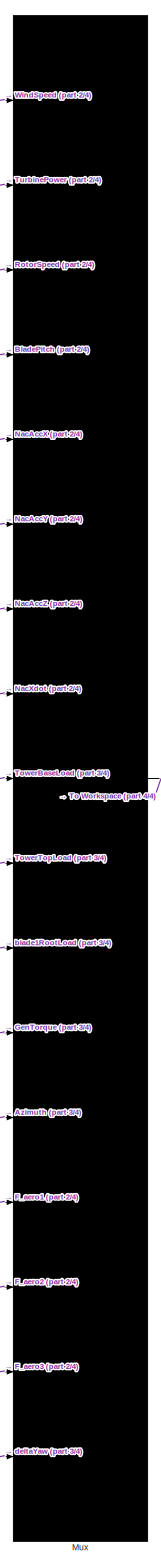
[diagram: Wind turbine/Outputs - part 1/4, center side, full height]
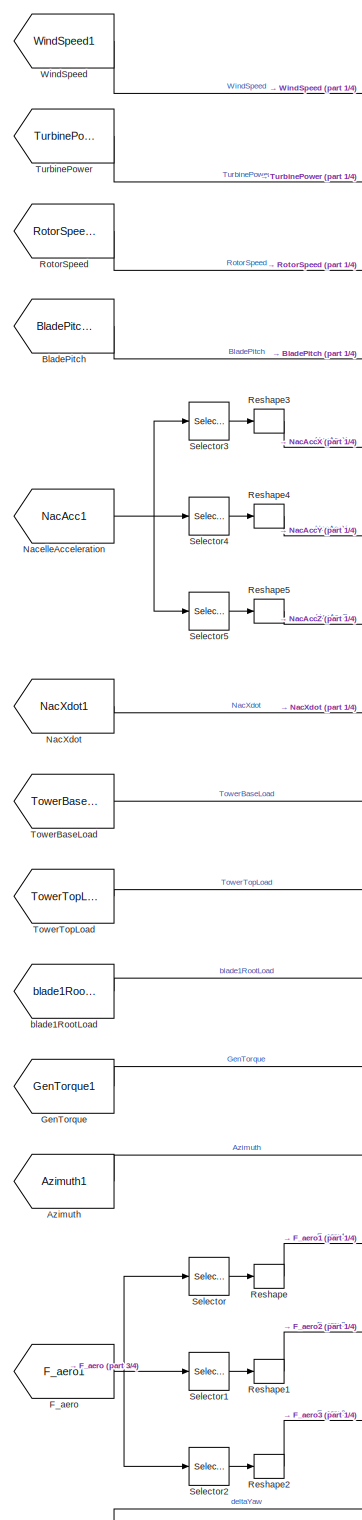
[diagram: Wind turbine/Outputs - part 2/4, left side, full height]
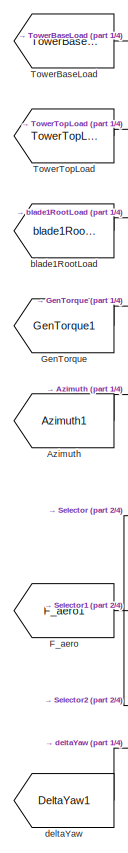
[diagram: Wind turbine/Outputs - part 3/4, bottom left region]
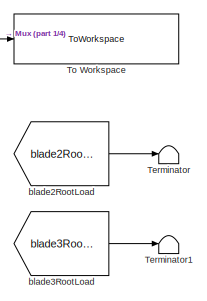
[diagram: Wind turbine/Outputs - part 4/4, middle right region]
BLOCK [SubSystem] Wind turbine/Outputs
  Ports = []
BLOCK [From] Wind turbine/Outputs/Azimuth
  GotoTag = Azimuth1
  TagVisibility = global
BLOCK [From] Wind turbine/Outputs/BladePitch
  GotoTag = BladePitch1
  TagVisibility = global
BLOCK [From] Wind turbine/Outputs/F_aero
  GotoTag = F_aero1
  TagVisibility = global
BLOCK [From] Wind turbine/Outputs/GenTorque
  GotoTag = GenTorque1
  TagVisibility = global
BLOCK [Mux] Wind turbine/Outputs/Mux
  DisplayOption = signals
  Inputs = 17
  Ports = [17, 1]
BLOCK [From] Wind turbine/Outputs/NacXdot
  GotoTag = NacXdot1
  TagVisibility = global
BLOCK [From] Wind turbine/Outputs/NacelleAcceleration
  GotoTag = NacAcc1
  TagVisibility = global
BLOCK [Reshape] Wind turbine/Outputs/Reshape
  Ports = [1, 1]
BLOCK [Reshape] Wind turbine/Outputs/Reshape1
  Ports = [1, 1]
BLOCK [Reshape] Wind turbine/Outputs/Reshape2
  Ports = [1, 1]
BLOCK [Reshape] Wind turbine/Outputs/Reshape3
  Ports = [1, 1]
BLOCK [Reshape] Wind turbine/Outputs/Reshape4
  Ports = [1, 1]
BLOCK [Reshape] Wind turbine/Outputs/Reshape5
  Ports = [1, 1]
BLOCK [From] Wind turbine/Outputs/RotorSpeed
  GotoTag = RotorSpeed1
  TagVisibility = global
BLOCK [Selector] Wind turbine/Outputs/Selector
  IndexOptions = Select all,Index vector (dialog)
  Indices = [1 3],1
  InputPortWidth = 3
  NumberOfDimensions = 2
  OutputSizes = 1,1
  Ports = [1, 1]
BLOCK [Selector] Wind turbine/Outputs/Selector1
  IndexOptions = Select all,Index vector (dialog)
  Indices = [1 3],2
  InputPortWidth = 3
  NumberOfDimensions = 2
  OutputSizes = 1,1
  Ports = [1, 1]
BLOCK [Selector] Wind turbine/Outputs/Selector2
  IndexOptions = Select all,Index vector (dialog)
  Indices = [1 3],3
  InputPortWidth = 3
  NumberOfDimensions = 2
  OutputSizes = 1,1
  Ports = [1, 1]
BLOCK [Selector] Wind turbine/Outputs/Selector3
  IndexOptions = Select all,Index vector (dialog)
  Indices = [1 3],1
  InputPortWidth = 3
  NumberOfDimensions = 2
  OutputSizes = 1,1
  Ports = [1, 1]
BLOCK [Selector] Wind turbine/Outputs/Selector4
  IndexOptions = Select all,Index vector (dialog)
  Indices = [1 3],2
  InputPortWidth = 3
  NumberOfDimensions = 2
  OutputSizes = 1,1
  Ports = [1, 1]
BLOCK [Selector] Wind turbine/Outputs/Selector5
  IndexOptions = Select all,Index vector (dialog)
  Indices = [1 3],3
  InputPortWidth = 3
  NumberOfDimensions = 2
  OutputSizes = 1,1
  Ports = [1, 1]
BLOCK [Terminator] Wind turbine/Outputs/Terminator
BLOCK [Terminator] Wind turbine/Outputs/Terminator1
BLOCK [ToWorkspace] Wind turbine/Outputs/To Workspace
  FixptAsFi = on
  MaxDataPoints = inf
  Ports = [1]
  SampleTime = simu.dtOut
  SaveFormat = Structure With Time
  VariableName = windTurbine1_out
BLOCK [From] Wind turbine/Outputs/TowerBaseLoad
  GotoTag = TowerBaseLoad1
  TagVisibility = global
BLOCK [From] Wind turbine/Outputs/TowerTopLoad
  GotoTag = TowerTopLoad1
  TagVisibility = global
BLOCK [From] Wind turbine/Outputs/TurbinePower
  GotoTag = TurbinePower1
  TagVisibility = global
BLOCK [From] Wind turbine/Outputs/WindSpeed
  GotoTag = WindSpeed1
  TagVisibility = global
BLOCK [From] Wind turbine/Outputs/blade1RootLoad
  GotoTag = blade1RootLoad1
  TagVisibility = global
BLOCK [From] Wind turbine/Outputs/blade2RootLoad
  GotoTag = blade2RootLoad1
  TagVisibility = global
BLOCK [From] Wind turbine/Outputs/blade3RootLoad
  GotoTag = blade3RootLoad1
  TagVisibility = global
BLOCK [From] Wind turbine/Outputs/deltaYaw
  GotoTag = DeltaYaw1
  TagVisibility = global
BLOCK [Reference] Wind turbine/Overhang  REF=sm_lib/Frames and
Transforms/Rigid
Transform
  NameLocation = top
  Ports = [0, 0, 0, 0, 0, 1, 1]
  SourceBlock = sm_lib/Frames and\nTransforms/Rigid\nTransform
  SourceType = Rigid\nTransform
BLOCK [Reference] Wind turbine/Simulink-PS Converter2  REF=nesl_utility/Simulink-PS
Converter
  Ports = [1, 0, 0, 0, 0, 0, 1]
  SourceBlock = nesl_utility/Simulink-PS\nConverter
  SourceType = Simulink-PS\nConverter
BLOCK [SubSystem] Wind turbine/States Sensor
  PortSchema = {"entries":[{"content":{"sides":[{"content":{"connectorIds":["LConn1"]},"type":"ConnectorPlacement.EquallySpacedRectSide","uuid":"e2551c45-43da-4d17-b6e7-45dc7a2744e2"},{"content":{"side":"RIGHT"},"type":"ConnectorPlacement.EquallySpacedRectSide","uuid":"3e623cb2-59ea-443e-940e-3b000cef6b1c"},{"content":{"side":"TOP"},"type":"ConnectorPlacement.EquallySpacedRectSide","uuid":"fecc8c6a-e08d-489d-84d...<+351ch>
  Ports = [0, 1, 0, 0, 0, 1]
BLOCK [Reference] Wind turbine/States Sensor/-Tilt  REF=sm_lib/Frames and
Transforms/Rigid
Transform
  NameLocation = top
  Ports = [0, 0, 0, 0, 0, 1, 1]
  SourceBlock = sm_lib/Frames and\nTransforms/Rigid\nTransform
  SourceType = Rigid\nTransform
BLOCK [Gain] Wind turbine/States Sensor/Gain
  Gain = -1
BLOCK [Gain] Wind turbine/States Sensor/Gain1
  Gain = -1
BLOCK [Gain] Wind turbine/States Sensor/Gain2
  Gain = -1
BLOCK [Gain] Wind turbine/States Sensor/Gain3
  Gain = -1
BLOCK [Gain] Wind turbine/States Sensor/Gain4
  Gain = -1
BLOCK [Gain] Wind turbine/States Sensor/Gain5
  Gain = -1
BLOCK [Gain] Wind turbine/States Sensor/Gain6
  Gain = -1
BLOCK [Gain] Wind turbine/States Sensor/Gain7
  Gain = -1
BLOCK [Gain] Wind turbine/States Sensor/Gain8
  Gain = -1
BLOCK [Gain] Wind turbine/States Sensor/Gain9
  Gain = -1
BLOCK [Outport] Wind turbine/States Sensor/Hub States (no tilt)
BLOCK [Reference] Wind turbine/States Sensor/Overhang  REF=sm_lib/Frames and
Transforms/Rigid
Transform
  NameLocation = top
  Ports = [0, 0, 0, 0, 0, 1, 1]
  SourceBlock = sm_lib/Frames and\nTransforms/Rigid\nTransform
  SourceType = Rigid\nTransform
BLOCK [Reference] Wind turbine/States Sensor/PS-Simulink Converter  REF=nesl_utility/PS-Simulink
Converter
  Ports = [0, 1, 0, 0, 0, 1]
  SourceBlock = nesl_utility/PS-Simulink\nConverter
  SourceType = PS-Simulink\nConverter
BLOCK [Reference] Wind turbine/States Sensor/PS-Simulink Converter1  REF=nesl_utility/PS-Simulink
Converter
  Ports = [0, 1, 0, 0, 0, 1]
  SourceBlock = nesl_utility/PS-Simulink\nConverter
  SourceType = PS-Simulink\nConverter
BLOCK [Reference] Wind turbine/States Sensor/PS-Simulink Converter2  REF=nesl_utility/PS-Simulink
Converter
  Ports = [0, 1, 0, 0, 0, 1]
  SourceBlock = nesl_utility/PS-Simulink\nConverter
  SourceType = PS-Simulink\nConverter
BLOCK [Reference] Wind turbine/States Sensor/PS-Simulink Converter3  REF=nesl_utility/PS-Simulink
Converter
  Ports = [0, 1, 0, 0, 0, 1]
  SourceBlock = nesl_utility/PS-Simulink\nConverter
  SourceType = PS-Simulink\nConverter
BLOCK [Reference] Wind turbine/States Sensor/PS-Simulink Converter4  REF=nesl_utility/PS-Simulink
Converter
  Ports = [0, 1, 0, 0, 0, 1]
  SourceBlock = nesl_utility/PS-Simulink\nConverter
  SourceType = PS-Simulink\nConverter
BLOCK [Reference] Wind turbine/States Sensor/PS-Simulink Converter5  REF=nesl_utility/PS-Simulink
Converter
  Ports = [0, 1, 0, 0, 0, 1]
  SourceBlock = nesl_utility/PS-Simulink\nConverter
  SourceType = PS-Simulink\nConverter
BLOCK [Reference] Wind turbine/States Sensor/PS-Simulink Converter6  REF=nesl_utility/PS-Simulink
Converter
  Ports = [0, 1, 0, 0, 0, 1]
  SourceBlock = nesl_utility/PS-Simulink\nConverter
  SourceType = PS-Simulink\nConverter
BLOCK [Reference] Wind turbine/States Sensor/PS-Simulink Converter7  REF=nesl_utility/PS-Simulink
Converter
  Ports = [0, 1, 0, 0, 0, 1]
  SourceBlock = nesl_utility/PS-Simulink\nConverter
  SourceType = PS-Simulink\nConverter
BLOCK [Reference] Wind turbine/States Sensor/PS-Simulink Converter8  REF=nesl_utility/PS-Simulink
Converter
  Ports = [0, 1, 0, 0, 0, 1]
  SourceBlock = nesl_utility/PS-Simulink\nConverter
  SourceType = PS-Simulink\nConverter
BLOCK [Reference] Wind turbine/States Sensor/PS-Simulink Converter9  REF=nesl_utility/PS-Simulink
Converter
  Ports = [0, 1, 0, 0, 0, 1]
  SourceBlock = nesl_utility/PS-Simulink\nConverter
  SourceType = PS-Simulink\nConverter
BLOCK [SubSystem] Wind turbine/States Sensor/Sorting
  Ports = [10, 1]
BLOCK [Inport] Wind turbine/States Sensor/Sorting/Angles
  IconDisplay = Signal name
BLOCK [Inport] Wind turbine/States Sensor/Sorting/In10
  IconDisplay = Signal name
  Port = 10
BLOCK [Inport] Wind turbine/States Sensor/Sorting/In2
  IconDisplay = Signal name
  Port = 2
BLOCK [Inport] Wind turbine/States Sensor/Sorting/In3
  IconDisplay = Signal name
  Port = 3
BLOCK [Inport] Wind turbine/States Sensor/Sorting/In4
  IconDisplay = Signal name
  Port = 4
BLOCK [Inport] Wind turbine/States Sensor/Sorting/In5
  IconDisplay = Signal name
  Port = 5
BLOCK [Inport] Wind turbine/States Sensor/Sorting/In6
  IconDisplay = Signal name
  Port = 6
BLOCK [Inport] Wind turbine/States Sensor/Sorting/In7
  IconDisplay = Signal name
  Port = 7
BLOCK [Inport] Wind turbine/States Sensor/Sorting/In8
  IconDisplay = Signal name
  Port = 8
BLOCK [Inport] Wind turbine/States Sensor/Sorting/In9
  IconDisplay = Signal name
  Port = 9
BLOCK [Mux] Wind turbine/States Sensor/Sorting/Mux
  DisplayOption = bar
  Inputs = 10
  Ports = [10, 1]
BLOCK [Outport] Wind turbine/States Sensor/Sorting/States
BLOCK [PMIOPort] Wind turbine/States Sensor/Tower top
  Side = Left
BLOCK [Reference] Wind turbine/States Sensor/Transform Sensor  REF=sm_lib/Frames and
Transforms/Transform
Sensor
  Ports = [0, 0, 0, 0, 0, 1, 11]
  SourceBlock = sm_lib/Frames and\nTransforms/Transform\nSensor
  SourceType = Transform\nSensor
BLOCK [Reference] Wind turbine/States Sensor/Twr2shaft + Tilt   REF=sm_lib/Frames and
Transforms/Rigid
Transform
  NameLocation = top
  Ports = [0, 0, 0, 0, 0, 1, 1]
  SourceBlock = sm_lib/Frames and\nTransforms/Rigid\nTransform
  SourceType = Rigid\nTransform
BLOCK [Reference] Wind turbine/States Sensor/World Frame  REF=sm_lib/Frames and
Transforms/World Frame
  Ports = [0, 0, 0, 0, 0, 0, 1]
  SourceBlock = sm_lib/Frames and\nTransforms/World Frame
  SourceType = World Frame
BLOCK [Reference] Wind turbine/States Sensor/quaternion2EulXYZ  REF=WECSim_Lib_Body_Elements/Rigid Body/Hydrodynamic Body/Structure/Motion Sensor/quaternion2EulXYZ
  NameLocation = top
  Ports = [1, 1]
  SourceBlock = WECSim_Lib_Body_Elements/Rigid Body/Hydrodynamic Body/Structure/Motion Sensor/quaternion2EulXYZ
  SourceType = SubSystem
BLOCK [SubSystem] Wind turbine/Tower
  NameLocation = top
  Ports = [0, 0, 0, 0, 0, 1]
BLOCK [Reference] Wind turbine/Tower Height  REF=sm_lib/Frames and
Transforms/Rigid
Transform
  NameLocation = top
  Ports = [0, 0, 0, 0, 0, 1, 1]
  SourceBlock = sm_lib/Frames and\nTransforms/Rigid\nTransform
  SourceType = Rigid\nTransform
BLOCK [Reference] Wind turbine/Tower/Body Properties Tower  REF=sm_lib/Body Elements/File Solid
  NameLocation = top
  Ports = [0, 0, 0, 0, 0, 0, 1]
  SourceBlock = sm_lib/Body Elements/File Solid
  SourceType = File Solid
BLOCK [Constant] Wind turbine/Tower/Constant
  Value = -windTurbine.tower.mass*simu.gravity
BLOCK [Reference] Wind turbine/Tower/External Force and Torque  REF=sm_lib/Forces and
Torques/External Force
and Torque
  Ports = [0, 0, 0, 0, 0, 1, 1]
  SourceBlock = sm_lib/Forces and\nTorques/External Force\nand Torque
  SourceType = External Force\nand Torque
BLOCK [Reference] Wind turbine/Tower/Relative COG Tower  REF=sm_lib/Frames and
Transforms/Rigid
Transform
  NameLocation = top
  Ports = [0, 0, 0, 0, 0, 1, 1]
  SourceBlock = sm_lib/Frames and\nTransforms/Rigid\nTransform
  SourceType = Rigid\nTransform
BLOCK [Reference] Wind turbine/Tower/Simulink-PS Converter  REF=nesl_utility/Simulink-PS
Converter
  Ports = [1, 0, 0, 0, 0, 0, 1]
  SourceBlock = nesl_utility/Simulink-PS\nConverter
  SourceType = Simulink-PS\nConverter
BLOCK [PMIOPort] Wind turbine/Tower/Tower Base
  Side = Left
BLOCK [SubSystem] Wind turbine/TowerBaseLoad
  Ports = [0, 0, 0, 0, 0, 2]
BLOCK [Mux] Wind turbine/TowerBaseLoad/Mux
  DisplayOption = bar
  Inputs = 2
  Ports = [2, 1]
BLOCK [Reference] Wind turbine/TowerBaseLoad/PS-Simulink Converter6  REF=nesl_utility/PS-Simulink
Converter
  Ports = [0, 1, 0, 0, 0, 1]
  SourceBlock = nesl_utility/PS-Simulink\nConverter
  SourceType = PS-Simulink\nConverter
BLOCK [Reference] Wind turbine/TowerBaseLoad/PS-Simulink Converter7  REF=nesl_utility/PS-Simulink
Converter
  NameLocation = top
  Ports = [0, 1, 0, 0, 0, 1]
  SourceBlock = nesl_utility/PS-Simulink\nConverter
  SourceType = PS-Simulink\nConverter
BLOCK [Goto] Wind turbine/TowerBaseLoad/TowerBaseLoad
  GotoTag = TowerBaseLoad1
  TagVisibility = global
BLOCK [PMIOPort] Wind turbine/TowerBaseLoad/fc
  NameLocation = top
  Side = Left
BLOCK [PMIOPort] Wind turbine/TowerBaseLoad/tc
  Port = 2
  Side = Left
BLOCK [SubSystem] Wind turbine/TowerTopLoad and deltaYaw
  Ports = [0, 0, 0, 0, 0, 3]
BLOCK [Mux] Wind turbine/TowerTopLoad and deltaYaw/Mux1
  DisplayOption = bar
  Inputs = 2
  Ports = [2, 1]
BLOCK [Reference] Wind turbine/TowerTopLoad and deltaYaw/PS-Simulink Converter1  REF=nesl_utility/PS-Simulink
Converter
  Ports = [0, 1, 0, 0, 0, 1]
  SourceBlock = nesl_utility/PS-Simulink\nConverter
  SourceType = PS-Simulink\nConverter
BLOCK [Reference] Wind turbine/TowerTopLoad and deltaYaw/PS-Simulink Converter8  REF=nesl_utility/PS-Simulink
Converter
  Ports = [0, 1, 0, 0, 0, 1]
  SourceBlock = nesl_utility/PS-Simulink\nConverter
  SourceType = PS-Simulink\nConverter
BLOCK [Reference] Wind turbine/TowerTopLoad and deltaYaw/PS-Simulink Converter9  REF=nesl_utility/PS-Simulink
Converter
  Ports = [0, 1, 0, 0, 0, 1]
  SourceBlock = nesl_utility/PS-Simulink\nConverter
  SourceType = PS-Simulink\nConverter
BLOCK [Goto] Wind turbine/TowerTopLoad and deltaYaw/TowerTopLoad
  GotoTag = TowerTopLoad1
  TagVisibility = global
BLOCK [Goto] Wind turbine/TowerTopLoad and deltaYaw/deltaYaw
  GotoTag = DeltaYaw1
  TagVisibility = global
BLOCK [PMIOPort] Wind turbine/TowerTopLoad and deltaYaw/ft
  NameLocation = top
  Port = 2
  Side = Left
BLOCK [PMIOPort] Wind turbine/TowerTopLoad and deltaYaw/q
  NameLocation = top
  Side = Left
BLOCK [PMIOPort] Wind turbine/TowerTopLoad and deltaYaw/tt
  Port = 3
  Side = Left
BLOCK [Reference] Wind turbine/Twr2shaft + Tilt   REF=sm_lib/Frames and
Transforms/Rigid
Transform
  NameLocation = top
  Ports = [0, 0, 0, 0, 0, 1, 1]
  SourceBlock = sm_lib/Frames and\nTransforms/Rigid\nTransform
  SourceType = Rigid\nTransform
BLOCK [Reference] Wind turbine/Weld Joint  REF=sm_lib/Joints/Weld Joint
  Ports = [0, 0, 0, 0, 0, 1, 3]
  SourceBlock = sm_lib/Joints/Weld Joint
  SourceType = Weld Joint
BLOCK [Reference] Wind turbine/Yaw Joint  REF=sm_lib/Joints/Revolute Joint
  Ports = [0, 0, 0, 0, 0, 2, 4]
  SourceBlock = sm_lib/Joints/Revolute Joint
  SourceType = Revolute Joint
BLOCK [PMIOPort] Wind turbine/w.r.f
  Side = Right
ANNOTATION Wind turbine/Aerodynamics + Control/Aeroloads: 1) Add Subsystem or Model blocks as valid variant choices. 2) You cannot connect blocks at this level. At simulation, connectivity is automatically determined, based on the active variant and port name matching.
ANNOTATION Wind turbine/Aerodynamics + Control/Control: 1) Add Subsystem or Model blocks as valid variant choices. 2) You cannot connect blocks at this level. At simulation, connectivity is automatically determined, based on the active variant and port name matching.
CHART Wind turbine/Aerodynamics + Control/Aeroloads/BEM/BEM states=1 transitions=1
  STATE_LABEL 'eML_blk_kernel()'
  STATE_LABEL 'SCRIPT:\nfunction F_aero_r_bl = BEM(wind,q,bladepitch,BEMstruct)\n\n%% INFO\n\n% q: 1-12  -Hub states (no tilt)\n%    13    -azimuth\n%    14    -rotor omega \n\n%% CALC AEROLOADS\n\n    pntm=[0 0 0].*BEMstruct.bladedata_r;  \n    Cn=0;   Ct=0;    CM=0;\n    F_aero_r_bl=zeros(6,3);\n\n           \n    R_02hu=Rx(q(4))*Ry(q(5))*Rz(q(6))*BEMstruct.WT_Ry_tilt;\n    w_rot_0=q(10:12)+R_02hu*[q(14);0;0];\n       \n        ...<+3608ch>'
CHART Wind turbine/Aerodynamics + Control/Aeroloads/Look-up Tables/Relative Wind/Calc Relative Wind states=1 transitions=1
  STATE_LABEL 'eML_blk_kernel()'
  STATE_LABEL 'SCRIPT:\nfunction v_wind_rel_bl_x = Calc_relative_wind(wind, q, tilt, precone, bladeDiscr, BlCrvAC, BlSwpAC, BlCrvAng, Wind_Xdiscr, Wind_Ydiscr, Wind_Zdiscr)\n\n%% INFO\n\n% q: 1-12  -Hub states (no tilt)\n%    13    -azimuth\n%    14    -rotor omega \n\n%% MAIN\nv_wind_rel_bl_x=zeros(3,1);\n\nR_02hu=Rx(q(4))*Ry(q(5))*Rz(q(6))*Ry(tilt);\n    w_rot_0=q(10:12)+R_02hu*[q(14);0;0];\n\n\nfor bl=1:3\n\n    R_02bl_root=R_...<+1669ch>'
CHART  states=0 transitions=0
CHART  states=0 transitions=0
